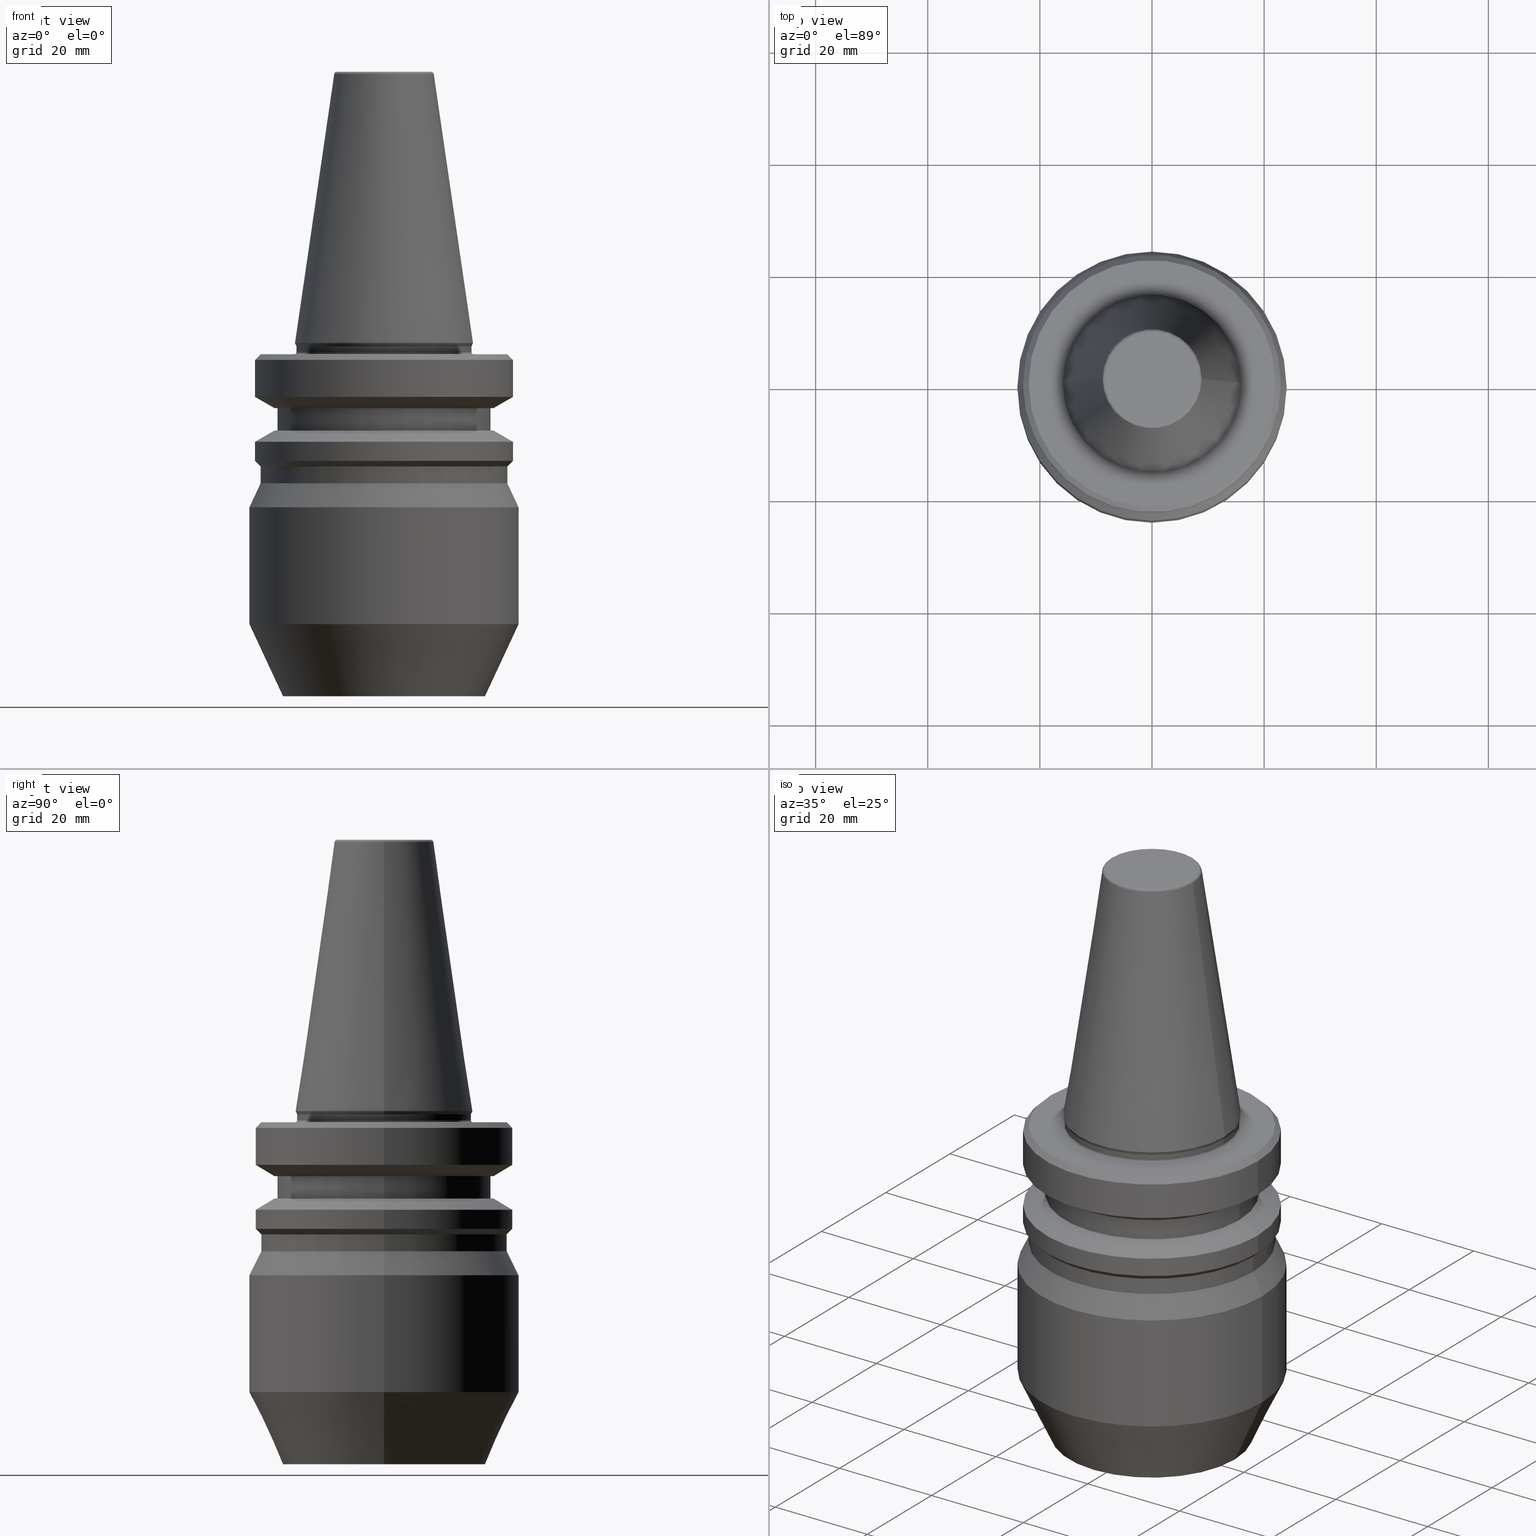
[diagram: canonical four-view strip — front | top / right | iso, engineering-drawing reading convention]
A machine part, canonical four-view strip (front | top / right | iso — engineering-drawing reading convention). The complete STEP part file that produces these views, byte-faithful:
ISO-10303-21;
HEADER;
FILE_DESCRIPTION (( 'STEP AP203' ),
    '1' );
FILE_NAME ('BT30 WE16 063 AD-6.3G15000 SL.STEP',
    '2019-05-22T05:00:20',
    ( '' ),
    ( '' ),
    'SwSTEP 2.0',
    'SolidWorks 2014',
    '' );
FILE_SCHEMA (( 'CONFIG_CONTROL_DESIGN' ));
ENDSEC;

DATA;
#1 = DIRECTION ( 'NONE',  ( 1.000000000000000000, 0.0000000000000000000, 0.0000000000000000000 ) ) ;
#2 = DIRECTION ( 'NONE',  ( 1.000000000000000000, 0.0000000000000000000, 0.0000000000000000000 ) ) ;
#3 = CONICAL_SURFACE ( 'NONE', #935, 23.99999999999813500, 0.4363323129985290900 ) ;
#4 = DIRECTION ( 'NONE',  ( 1.000000000000000000, 0.0000000000000000000, 0.0000000000000000000 ) ) ;
#5 = ADVANCED_FACE ( 'NONE', ( #644 ), #419, .T. ) ;
#6 = CIRCLE ( 'NONE', #303, 22.00000000000013100 ) ;
#7 = AXIS2_PLACEMENT_3D ( 'NONE', #757, #296, #773 ) ;
#8 = DIRECTION ( 'NONE',  ( 1.000000000000000000, 0.0000000000000000000, 0.0000000000000000000 ) ) ;
#9 = CIRCLE ( 'NONE', #916, 17.99999999999846200 ) ;
#10 = EDGE_CURVE ( 'NONE', #975, #853, #617, .T. ) ;
#11 = LINE ( 'NONE', #129, #441 ) ;
#12 = DIRECTION ( 'NONE',  ( -0.0000000000000000000, -0.0000000000000000000, 1.000000000000000000 ) ) ;
#13 = ORIENTED_EDGE ( 'NONE', *, *, #766, .T. ) ;
#14 = EDGE_CURVE ( 'NONE', #721, #677, #11, .T. ) ;
#15 = ORIENTED_EDGE ( 'NONE', *, *, #306, .T. ) ;
#16 = ORIENTED_EDGE ( 'NONE', *, *, #295, .T. ) ;
#17 = CARTESIAN_POINT ( 'NONE',  ( -8.384228427309349000, 1.026771850682464100E-015, 47.89999999999960800 ) ) ;
#18 = DIRECTION ( 'NONE',  ( 1.000000000000000000, 0.0000000000000000000, 0.0000000000000000000 ) ) ;
#19 = DIRECTION ( 'NONE',  ( 1.000000000000000000, 0.0000000000000000000, 0.0000000000000000000 ) ) ;
#20 = AXIS2_PLACEMENT_3D ( 'NONE', #367, #120, #233 ) ;
#21 = EDGE_CURVE ( 'NONE', #464, #800, #816, .T. ) ;
#22 = CARTESIAN_POINT ( 'NONE',  ( 0.0000000000000000000, 0.0000000000000000000, -15.59999999999983600 ) ) ;
#23 = VERTEX_POINT ( 'NONE', #544 ) ;
#24 = VECTOR ( 'NONE', #649, 1000.000000000000000 ) ;
#25 = CALENDAR_DATE ( 2019, 22, 5 ) ;
#26 = DIRECTION ( 'NONE',  ( 1.000000000000000000, 0.0000000000000000000, 0.0000000000000000000 ) ) ;
#27 = DIRECTION ( 'NONE',  ( -0.0000000000000000000, -0.0000000000000000000, 1.000000000000000000 ) ) ;
#28 = AXIS2_PLACEMENT_3D ( 'NONE', #22, #815, #936 ) ;
#29 = CIRCLE ( 'NONE', #252, 23.99999999999813500 ) ;
#30 = CIRCLE ( 'NONE', #28, 19.00000000000023800 ) ;
#31 = VECTOR ( 'NONE', #567, 1000.000000000000000 ) ;
#32 = CARTESIAN_POINT ( 'NONE',  ( 0.0000000000000000000, 19.53610161513941200, -11.59999999999938900 ) ) ;
#33 = SECURITY_CLASSIFICATION ( '', '', #424 ) ;
#34 = EDGE_LOOP ( 'NONE', ( #269, #571, #444, #601 ) ) ;
#35 = DATE_TIME_ROLE ( 'classification_date' ) ;
#36 = DIRECTION ( 'NONE',  ( -0.0000000000000000000, -0.0000000000000000000, 1.000000000000000000 ) ) ;
#37 = ORIENTED_EDGE ( 'NONE', *, *, #770, .F. ) ;
#38 = ORIENTED_EDGE ( 'NONE', *, *, #21, .F. ) ;
#39 = AXIS2_PLACEMENT_3D ( 'NONE', #656, #502, #452 ) ;
#40 = DIRECTION ( 'NONE',  ( -0.0000000000000000000, -0.0000000000000000000, 1.000000000000000000 ) ) ;
#41 = CC_DESIGN_PERSON_AND_ORGANIZATION_ASSIGNMENT ( #48, #695, ( #609 ) ) ;
#42 = ORIENTED_EDGE ( 'NONE', *, *, #946, .F. ) ;
#43 = CARTESIAN_POINT ( 'NONE',  ( 23.00000000000002100, 2.816687638038915100E-015, -2.999999999999891600 ) ) ;
#44 = CARTESIAN_POINT ( 'NONE',  ( 22.00000000000013100, 0.0000000000000000000, -21.99999999999979700 ) ) ;
#45 = ORIENTED_EDGE ( 'NONE', *, *, #942, .F. ) ;
#46 = FACE_OUTER_BOUND ( 'NONE', #889, .T. ) ;
#47 = AXIS2_PLACEMENT_3D ( 'NONE', #687, #613, #497 ) ;
#48 = PERSON_AND_ORGANIZATION ( #655, #369 ) ;
#49 = EDGE_LOOP ( 'NONE', ( #1017, #13, #953, #755 ) ) ;
#50 = CARTESIAN_POINT ( 'NONE',  ( 19.00000000000023800, 0.0000000000000000000, 80.11315735852554100 ) ) ;
#51 = CARTESIAN_POINT ( 'NONE',  ( 0.0000000000000000000, 0.0000000000000000000, -0.5897394031393332600 ) ) ;
#52 = DIRECTION ( 'NONE',  ( 1.000000000000000000, 0.0000000000000000000, 0.0000000000000000000 ) ) ;
#53 = TOROIDAL_SURFACE ( 'NONE', #207, 8.384228427309349000, 0.4999999999999026300 ) ;
#54 = DIRECTION ( 'NONE',  ( 0.0000000000000000000, 0.0000000000000000000, -1.000000000000000000 ) ) ;
#55 = VECTOR ( 'NONE', #436, 1000.000000000000000 ) ;
#56 = LINE ( 'NONE', #133, #866 ) ;
#57 =( LENGTH_UNIT ( ) NAMED_UNIT ( * ) SI_UNIT ( .MILLI., .METRE. ) );
#58 = EDGE_CURVE ( 'NONE', #197, #870, #228, .T. ) ;
#59 = CARTESIAN_POINT ( 'NONE',  ( 0.0000000000000000000, 0.0000000000000000000, -62.99999999999948800 ) ) ;
#60 = EDGE_LOOP ( 'NONE', ( #209, #515, #471, #253 ) ) ;
#61 = AXIS2_PLACEMENT_3D ( 'NONE', #943, #572, #746 ) ;
#62 = ORIENTED_EDGE ( 'NONE', *, *, #245, .T. ) ;
#63 = CARTESIAN_POINT ( 'NONE',  ( -23.00000000000002100, 2.816687638038914700E-015, -9.600117335054614300 ) ) ;
#64 = DIRECTION ( 'NONE',  ( -0.0000000000000000000, -0.0000000000000000000, 1.000000000000000000 ) ) ;
#65 = AXIS2_PLACEMENT_3D ( 'NONE', #599, #799, #285 ) ;
#66 = EDGE_LOOP ( 'NONE', ( #361, #283, #42, #603 ) ) ;
#67 = CIRCLE ( 'NONE', #96, 22.00000000000013100 ) ;
#68 = COORDINATED_UNIVERSAL_TIME_OFFSET ( 5, 30, .AHEAD. ) ;
#69 = AXIS2_PLACEMENT_3D ( 'NONE', #379, #562, #999 ) ;
#70 = DIRECTION ( 'NONE',  ( -0.0000000000000000000, -0.0000000000000000000, 1.000000000000000000 ) ) ;
#71 = ORIENTED_EDGE ( 'NONE', *, *, #487, .T. ) ;
#72 = CARTESIAN_POINT ( 'NONE',  ( 0.0000000000000000000, 0.0000000000000000000, -0.5897394031393332600 ) ) ;
#73 = AXIS2_PLACEMENT_3D ( 'NONE', #952, #877, #871 ) ;
#74 = EDGE_LOOP ( 'NONE', ( #477, #301 ) ) ;
#75 = DIRECTION ( 'NONE',  ( 1.000000000000000000, 0.0000000000000000000, 0.0000000000000000000 ) ) ;
#76 = FACE_OUTER_BOUND ( 'NONE', #904, .T. ) ;
#77 = ADVANCED_FACE ( 'NONE', ( #597 ), #986, .T. ) ;
#78 = DIRECTION ( 'NONE',  ( 0.7071067811865474600, 8.659560562354931600E-017, -0.7071067811865475700 ) ) ;
#79 = AXIS2_PLACEMENT_3D ( 'NONE', #643, #169, #19 ) ;
#80 = CIRCLE ( 'NONE', #290, 0.4999999999999033000 ) ;
#81 = CARTESIAN_POINT ( 'NONE',  ( 23.00000000000002100, 0.0000000000000000000, 80.11315735852554100 ) ) ;
#82 = ORIENTED_EDGE ( 'NONE', *, *, #576, .F. ) ;
#83 = CARTESIAN_POINT ( 'NONE',  ( -23.00000000000002100, 2.816687638038915100E-015, -2.999999999999891600 ) ) ;
#84 = VERTEX_POINT ( 'NONE', #1016 ) ;
#85 = CARTESIAN_POINT ( 'NONE',  ( 0.0000000000000000000, 0.0000000000000000000, 0.0000000000000000000 ) ) ;
#86 = DIRECTION ( 'NONE',  ( 1.000000000000000000, 0.0000000000000000000, 0.0000000000000000000 ) ) ;
#87 = CARTESIAN_POINT ( 'NONE',  ( 0.0000000000000000000, 0.0000000000000000000, -2.999999999999891600 ) ) ;
#88 = AXIS2_PLACEMENT_3D ( 'NONE', #51, #64, #716 ) ;
#89 = ORIENTED_EDGE ( 'NONE', *, *, #145, .F. ) ;
#90 = CARTESIAN_POINT ( 'NONE',  ( -17.99999999999846200, 2.571758278209233400E-015, -62.99999999999948800 ) ) ;
#91 = EDGE_CURVE ( 'NONE', #822, #213, #177, .T. ) ;
#92 = PLANE ( 'NONE',  #481 ) ;
#93 = ORIENTED_EDGE ( 'NONE', *, *, #495, .T. ) ;
#94 = AXIS2_PLACEMENT_3D ( 'NONE', #138, #861, #352 ) ;
#95 = DIRECTION ( 'NONE',  ( 0.0000000000000000000, 0.0000000000000000000, -1.000000000000000000 ) ) ;
#96 = AXIS2_PLACEMENT_3D ( 'NONE', #908, #387, #886 ) ;
#97 = DIRECTION ( 'NONE',  ( 1.000000000000000000, 0.0000000000000000000, 0.0000000000000000000 ) ) ;
#98 = VECTOR ( 'NONE', #434, 1000.000000000000000 ) ;
#99 = FACE_OUTER_BOUND ( 'NONE', #103, .T. ) ;
#100 = PLANE ( 'NONE',  #586 ) ;
#101 = LOCAL_TIME ( 10, 30, 20.00000000000000000, #321 ) ;
#102 = VERTEX_POINT ( 'NONE', #570 ) ;
#103 = EDGE_LOOP ( 'NONE', ( #680, #920, #170, #945 ) ) ;
#104 = CARTESIAN_POINT ( 'NONE',  ( 0.0000000000000000000, 0.0000000000000000000, -2.999999999999891600 ) ) ;
#105 = EDGE_LOOP ( 'NONE', ( #828, #758, #180, #924 ) ) ;
#106 = LINE ( 'NONE', #939, #511 ) ;
#107 = FACE_OUTER_BOUND ( 'NONE', #545, .T. ) ;
#108 = ORIENTED_EDGE ( 'NONE', *, *, #942, .T. ) ;
#109 = AXIS2_PLACEMENT_3D ( 'NONE', #869, #122, #284 ) ;
#110 = ORIENTED_EDGE ( 'NONE', *, *, #306, .F. ) ;
#111 = CARTESIAN_POINT ( 'NONE',  ( -23.00000000000002100, 0.0000000000000000000, -17.59988266494572100 ) ) ;
#112 = ORIENTED_EDGE ( 'NONE', *, *, #262, .T. ) ;
#113 = AXIS2_PLACEMENT_3D ( 'NONE', #32, #400, #850 ) ;
#114 = ORIENTED_EDGE ( 'NONE', *, *, #666, .F. ) ;
#115 = AXIS2_PLACEMENT_3D ( 'NONE', #457, #998, #540 ) ;
#116 = ORIENTED_EDGE ( 'NONE', *, *, #277, .F. ) ;
#117 = LINE ( 'NONE', #977, #727 ) ;
#118 = EDGE_CURVE ( 'NONE', #323, #994, #796, .T. ) ;
#119 = CIRCLE ( 'NONE', #355, 15.60000000000039200 ) ;
#120 = DIRECTION ( 'NONE',  ( -0.0000000000000000000, -0.0000000000000000000, 1.000000000000000000 ) ) ;
#121 = CALENDAR_DATE ( 2019, 22, 5 ) ;
#122 = DIRECTION ( 'NONE',  ( -0.0000000000000000000, -0.0000000000000000000, 1.000000000000000000 ) ) ;
#123 = DIRECTION ( 'NONE',  ( -0.0000000000000000000, -0.0000000000000000000, 1.000000000000000000 ) ) ;
#124 = VERTEX_POINT ( 'NONE', #817 ) ;
#125 = CC_DESIGN_PERSON_AND_ORGANIZATION_ASSIGNMENT ( #528, #526, ( #456 ) ) ;
#126 = DIRECTION ( 'NONE',  ( 1.000000000000000000, 0.0000000000000000000, 0.0000000000000000000 ) ) ;
#127 =( GEOMETRIC_REPRESENTATION_CONTEXT ( 3 ) GLOBAL_UNCERTAINTY_ASSIGNED_CONTEXT ( ( #420 ) ) GLOBAL_UNIT_ASSIGNED_CONTEXT ( ( #57, #395, #496 ) ) REPRESENTATION_CONTEXT ( 'NONE', 'WORKASPACE' ) );
#128 = CIRCLE ( 'NONE', #79, 23.00000000000002100 ) ;
#129 = CARTESIAN_POINT ( 'NONE',  ( -19.00000000000023800, 2.326828918380000200E-015, 80.11315735852554100 ) ) ;
#130 = FACE_OUTER_BOUND ( 'NONE', #184, .T. ) ;
#131 = VERTEX_POINT ( 'NONE', #163 ) ;
#132 = AXIS2_PLACEMENT_3D ( 'NONE', #136, #1006, #52 ) ;
#133 = CARTESIAN_POINT ( 'NONE',  ( -15.60000000000028000, 1.910449006669905600E-015, 80.11315735852554100 ) ) ;
#134 = EDGE_LOOP ( 'NONE', ( #463, #159, #255, #802 ) ) ;
#135 = AXIS2_PLACEMENT_3D ( 'NONE', #1010, #852, #846 ) ;
#136 = CARTESIAN_POINT ( 'NONE',  ( 0.0000000000000000000, 0.0000000000000000000, 80.11315735852554100 ) ) ;
#137 = CARTESIAN_POINT ( 'NONE',  ( 19.00000000000023800, 0.0000000000000000000, -15.59999999999983600 ) ) ;
#138 = CARTESIAN_POINT ( 'NONE',  ( 0.0000000000000000000, 0.0000000000000000000, -17.59988266494572100 ) ) ;
#139 = VERTEX_POINT ( 'NONE', #856 ) ;
#140 = ORIENTED_EDGE ( 'NONE', *, *, #442, .F. ) ;
#141 = FACE_OUTER_BOUND ( 'NONE', #554, .T. ) ;
#142 = AXIS2_PLACEMENT_3D ( 'NONE', #322, #393, #8 ) ;
#143 = VECTOR ( 'NONE', #581, 1000.000000000000000 ) ;
#144 = PERSON_AND_ORGANIZATION ( #655, #369 ) ;
#145 = EDGE_CURVE ( 'NONE', #575, #464, #368, .T. ) ;
#146 = DIRECTION ( 'NONE',  ( -0.0000000000000000000, -0.0000000000000000000, 1.000000000000000000 ) ) ;
#147 = DIRECTION ( 'NONE',  ( -0.0000000000000000000, -0.0000000000000000000, 1.000000000000000000 ) ) ;
#148 = VERTEX_POINT ( 'NONE', #728 ) ;
#149 = CARTESIAN_POINT ( 'NONE',  ( 15.87499999999930700, 1.944126793646338400E-015, 0.0000000000000000000 ) ) ;
#150 = AXIS2_PLACEMENT_3D ( 'NONE', #85, #460, #1 ) ;
#151 = CIRCLE ( 'NONE', #88, 15.60000000000016800 ) ;
#152 = DIRECTION ( 'NONE',  ( 1.000000000000000000, 0.0000000000000000000, 0.0000000000000000000 ) ) ;
#153 = AXIS2_PLACEMENT_3D ( 'NONE', #276, #494, #726 ) ;
#154 = VERTEX_POINT ( 'NONE', #536 ) ;
#155 = DIRECTION ( 'NONE',  ( -0.0000000000000000000, -0.0000000000000000000, 1.000000000000000000 ) ) ;
#156 = ORIENTED_EDGE ( 'NONE', *, *, #759, .F. ) ;
#157 = CARTESIAN_POINT ( 'NONE',  ( 22.00000000000013100, 0.0000000000000000000, 80.11315735852554100 ) ) ;
#158 = ORIENTED_EDGE ( 'NONE', *, *, #596, .T. ) ;
#159 = ORIENTED_EDGE ( 'NONE', *, *, #392, .T. ) ;
#160 = FACE_OUTER_BOUND ( 'NONE', #498, .T. ) ;
#161 = CC_DESIGN_DATE_AND_TIME_ASSIGNMENT ( #830, #35, ( #33 ) ) ;
#162 = CARTESIAN_POINT ( 'NONE',  ( 0.0000000000000000000, 0.0000000000000000000, -2.000000000000001800 ) ) ;
#163 = CARTESIAN_POINT ( 'NONE',  ( 22.00000000000013100, 2.755455298081553800E-015, -2.000000000000001800 ) ) ;
#164 = DIRECTION ( 'NONE',  ( -0.0000000000000000000, -0.0000000000000000000, 1.000000000000000000 ) ) ;
#165 = DIRECTION ( 'NONE',  ( -0.4226182617406511500, 0.0000000000000000000, -0.9063077870366724700 ) ) ;
#166 = DIRECTION ( 'NONE',  ( 1.000000000000000000, 0.0000000000000000000, 0.0000000000000000000 ) ) ;
#167 = DIRECTION ( 'NONE',  ( -0.0000000000000000000, -0.0000000000000000000, 1.000000000000000000 ) ) ;
#168 = AXIS2_PLACEMENT_3D ( 'NONE', #788, #905, #838 ) ;
#169 = DIRECTION ( 'NONE',  ( -0.0000000000000000000, -0.0000000000000000000, 1.000000000000000000 ) ) ;
#170 = ORIENTED_EDGE ( 'NONE', *, *, #616, .T. ) ;
#171 = AXIS2_PLACEMENT_3D ( 'NONE', #356, #859, #230 ) ;
#172 = ADVANCED_FACE ( 'NONE', ( #578, #394 ), #92, .F. ) ;
#173 = LINE ( 'NONE', #203, #981 ) ;
#174 = CONICAL_SURFACE ( 'NONE', #362, 23.00000000000002100, 0.7853981633974482800 ) ;
#175 = CARTESIAN_POINT ( 'NONE',  ( 0.0000000000000000000, 0.0000000000000000000, 48.39999999999951500 ) ) ;
#176 = CARTESIAN_POINT ( 'NONE',  ( -23.00000000000002100, 2.816687638038915100E-015, 80.11315735852554100 ) ) ;
#177 = CIRCLE ( 'NONE', #227, 19.53610161513941200 ) ;
#178 = CARTESIAN_POINT ( 'NONE',  ( -22.00000000000013100, 2.694222958124193000E-015, -21.99999999999979700 ) ) ;
#179 = ADVANCED_FACE ( 'NONE', ( #961 ), #202, .F. ) ;
#180 = ORIENTED_EDGE ( 'NONE', *, *, #279, .F. ) ;
#181 = ORIENTED_EDGE ( 'NONE', *, *, #288, .F. ) ;
#182 = DIRECTION ( 'NONE',  ( 0.0000000000000000000, 0.0000000000000000000, -1.000000000000000000 ) ) ;
#183 = FACE_OUTER_BOUND ( 'NONE', #134, .T. ) ;
#184 = EDGE_LOOP ( 'NONE', ( #71, #326 ) ) ;
#185 = DIRECTION ( 'NONE',  ( -0.0000000000000000000, -0.0000000000000000000, 1.000000000000000000 ) ) ;
#186 = AXIS2_PLACEMENT_3D ( 'NONE', #709, #787, #973 ) ;
#187 = AXIS2_PLACEMENT_3D ( 'NONE', #1004, #201, #484 ) ;
#188 = CARTESIAN_POINT ( 'NONE',  ( 0.0000000000000000000, 0.0000000000000000000, 0.0000000000000000000 ) ) ;
#189 = EDGE_LOOP ( 'NONE', ( #62, #422, #798, #706 ) ) ;
#190 = FACE_OUTER_BOUND ( 'NONE', #933, .T. ) ;
#191 = CARTESIAN_POINT ( 'NONE',  ( 0.0000000000000000000, 0.0000000000000000000, -29.28901384101512000 ) ) ;
#192 = DIRECTION ( 'NONE',  ( 1.000000000000000000, 0.0000000000000000000, 0.0000000000000000000 ) ) ;
#193 = AXIS2_PLACEMENT_3D ( 'NONE', #220, #363, #898 ) ;
#194 = CARTESIAN_POINT ( 'NONE',  ( -23.00000000000002100, 0.0000000000000000000, -2.999999999999891600 ) ) ;
#195 = AXIS2_PLACEMENT_3D ( 'NONE', #955, #824, #618 ) ;
#196 = CARTESIAN_POINT ( 'NONE',  ( 0.0000000000000000000, 0.0000000000000000000, -1.600000000000045800 ) ) ;
#197 = VERTEX_POINT ( 'NONE', #557 ) ;
#198 = VECTOR ( 'NONE', #941, 1000.000000000000000 ) ;
#199 = APPROVAL ( #278, 'UNSPECIFIED' ) ;
#200 = FACE_OUTER_BOUND ( 'NONE', #189, .T. ) ;
#201 = DIRECTION ( 'NONE',  ( 1.224646799147353200E-016, 1.000000000000000000, 0.0000000000000000000 ) ) ;
#202 = TOROIDAL_SURFACE ( 'NONE', #432, 16.00000000000056800, 0.4000000000001779900 ) ;
#203 = CARTESIAN_POINT ( 'NONE',  ( 15.60000000000016800, 0.0000000000000000000, -0.5897394031393332600 ) ) ;
#204 = EDGE_CURVE ( 'NONE', #538, #323, #552, .T. ) ;
#205 = ORIENTED_EDGE ( 'NONE', *, *, #745, .F. ) ;
#206 = EDGE_LOOP ( 'NONE', ( #205, #992, #16, #232 ) ) ;
#207 = AXIS2_PLACEMENT_3D ( 'NONE', #958, #208, #635 ) ;
#208 = DIRECTION ( 'NONE',  ( -0.0000000000000000000, -0.0000000000000000000, 1.000000000000000000 ) ) ;
#209 = ORIENTED_EDGE ( 'NONE', *, *, #759, .T. ) ;
#210 = EDGE_CURVE ( 'NONE', #124, #449, #348, .T. ) ;
#211 = DIRECTION ( 'NONE',  ( 1.000000000000000000, 0.0000000000000000000, 0.0000000000000000000 ) ) ;
#212 = EDGE_CURVE ( 'NONE', #449, #124, #119, .T. ) ;
#213 = VERTEX_POINT ( 'NONE', #259 ) ;
#214 = CYLINDRICAL_SURFACE ( 'NONE', #646, 23.00000000000002100 ) ;
#215 = COORDINATED_UNIVERSAL_TIME_OFFSET ( 5, 30, .AHEAD. ) ;
#216 = DIRECTION ( 'NONE',  ( -1.000000000000000000, 0.0000000000000000000, 0.0000000000000000000 ) ) ;
#217 = CARTESIAN_POINT ( 'NONE',  ( 0.0000000000000000000, 0.0000000000000000000, -62.99999999999948800 ) ) ;
#218 = AXIS2_PLACEMENT_3D ( 'NONE', #196, #810, #86 ) ;
#219 = LINE ( 'NONE', #551, #527 ) ;
#220 = CARTESIAN_POINT ( 'NONE',  ( 0.0000000000000000000, 0.0000000000000000000, -24.99999999999968700 ) ) ;
#221 = CONICAL_SURFACE ( 'NONE', #266, 15.87499999999930700, 0.1448138461595538900 ) ;
#222 = PLANE ( 'NONE',  #69 ) ;
#223 = CYLINDRICAL_SURFACE ( 'NONE', #236, 19.00000000000023800 ) ;
#224 = AXIS2_PLACEMENT_3D ( 'NONE', #900, #164, #485 ) ;
#225 = DIRECTION ( 'NONE',  ( 1.000000000000000000, 0.0000000000000000000, 0.0000000000000000000 ) ) ;
#226 = ADVANCED_FACE ( 'NONE', ( #931 ), #700, .T. ) ;
#227 = AXIS2_PLACEMENT_3D ( 'NONE', #475, #951, #883 ) ;
#228 = CIRCLE ( 'NONE', #168, 8.384228427309125200 ) ;
#229 = EDGE_LOOP ( 'NONE', ( #89, #1001, #841, #116 ) ) ;
#230 = DIRECTION ( 'NONE',  ( 1.000000000000000000, 0.0000000000000000000, 0.0000000000000000000 ) ) ;
#231 = CC_DESIGN_PERSON_AND_ORGANIZATION_ASSIGNMENT ( #855, #725, ( #609 ) ) ;
#232 = ORIENTED_EDGE ( 'NONE', *, *, #971, .T. ) ;
#233 = DIRECTION ( 'NONE',  ( 1.000000000000000000, 0.0000000000000000000, 0.0000000000000000000 ) ) ;
#234 = EDGE_LOOP ( 'NONE', ( #399, #1012 ) ) ;
#235 = CARTESIAN_POINT ( 'NONE',  ( 15.87499999999930700, 0.0000000000000000000, 0.0000000000000000000 ) ) ;
#236 = AXIS2_PLACEMENT_3D ( 'NONE', #357, #155, #765 ) ;
#237 = CARTESIAN_POINT ( 'NONE',  ( 19.53610161513941200, 0.0000000000000000000, -11.59999999999938900 ) ) ;
#238 = ORIENTED_EDGE ( 'NONE', *, *, #416, .F. ) ;
#239 = CYLINDRICAL_SURFACE ( 'NONE', #465, 23.99999999999813500 ) ;
#240 = LOCAL_TIME ( 10, 30, 20.00000000000000000, #451 ) ;
#241 = CARTESIAN_POINT ( 'NONE',  ( 8.384228427309349000, 0.0000000000000000000, 47.89999999999960800 ) ) ;
#242 = ADVANCED_FACE ( 'NONE', ( #99 ), #587, .T. ) ;
#243 = DIRECTION ( 'NONE',  ( 1.000000000000000000, 0.0000000000000000000, 0.0000000000000000000 ) ) ;
#244 = CYLINDRICAL_SURFACE ( 'NONE', #132, 22.00000000000013100 ) ;
#245 = EDGE_CURVE ( 'NONE', #853, #975, #504, .T. ) ;
#246 = ADVANCED_FACE ( 'NONE', ( #320 ), #778, .T. ) ;
#247 = DIRECTION ( 'NONE',  ( -0.0000000000000000000, -0.0000000000000000000, 1.000000000000000000 ) ) ;
#248 = FACE_BOUND ( 'NONE', #807, .T. ) ;
#249 = CARTESIAN_POINT ( 'NONE',  ( 19.53610161513941200, 0.0000000000000000000, -11.59999999999938900 ) ) ;
#250 = VECTOR ( 'NONE', #849, 1000.000000000000000 ) ;
#251 = DIRECTION ( 'NONE',  ( 1.000000000000000000, 0.0000000000000000000, 0.0000000000000000000 ) ) ;
#252 = AXIS2_PLACEMENT_3D ( 'NONE', #413, #289, #75 ) ;
#253 = ORIENTED_EDGE ( 'NONE', *, *, #675, .F. ) ;
#254 = DIRECTION ( 'NONE',  ( -0.8660254037844372600, 0.0000000000000000000, -0.5000000000000024400 ) ) ;
#255 = ORIENTED_EDGE ( 'NONE', *, *, #509, .T. ) ;
#256 = ADVANCED_FACE ( 'NONE', ( #183 ), #990, .T. ) ;
#257 = AXIS2_PLACEMENT_3D ( 'NONE', #351, #147, #704 ) ;
#258 = ORIENTED_EDGE ( 'NONE', *, *, #785, .T. ) ;
#259 = CARTESIAN_POINT ( 'NONE',  ( -19.53610161513941200, 2.604585034559353400E-015, -11.59999999999938900 ) ) ;
#260 = ADVANCED_FACE ( 'NONE', ( #902 ), #968, .T. ) ;
#261 = DIRECTION ( 'NONE',  ( -1.000000000000000000, 0.0000000000000000000, 0.0000000000000000000 ) ) ;
#262 = EDGE_CURVE ( 'NONE', #213, #822, #731, .T. ) ;
#263 = DIRECTION ( 'NONE',  ( 1.000000000000000000, 0.0000000000000000000, 0.0000000000000000000 ) ) ;
#264 = EDGE_LOOP ( 'NONE', ( #93, #956, #947, #768 ) ) ;
#265 = VECTOR ( 'NONE', #512, 1000.000000000000000 ) ;
#266 = AXIS2_PLACEMENT_3D ( 'NONE', #598, #875, #261 ) ;
#267 = APPROVAL_DATE_TIME ( #479, #734 ) ;
#268 = AXIS2_PLACEMENT_3D ( 'NONE', #304, #448, #997 ) ;
#269 = ORIENTED_EDGE ( 'NONE', *, *, #946, .T. ) ;
#270 = CARTESIAN_POINT ( 'NONE',  ( 15.60000000000028000, 0.0000000000000000000, 80.11315735852554100 ) ) ;
#271 = VECTOR ( 'NONE', #622, 999.9999999999998900 ) ;
#272 = CARTESIAN_POINT ( 'NONE',  ( 0.0000000000000000000, 0.0000000000000000000, -17.59988266494572100 ) ) ;
#273 = AXIS2_PLACEMENT_3D ( 'NONE', #188, #893, #978 ) ;
#274 = VECTOR ( 'NONE', #640, 1000.000000000000000 ) ;
#275 = CYLINDRICAL_SURFACE ( 'NONE', #556, 22.00000000000013100 ) ;
#276 = CARTESIAN_POINT ( 'NONE',  ( 0.0000000000000000000, 0.0000000000000000000, 80.11315735852554100 ) ) ;
#277 = EDGE_CURVE ( 'NONE', #464, #868, #584, .T. ) ;
#278 = APPROVAL_STATUS ( 'not_yet_approved' ) ;
#279 = EDGE_CURVE ( 'NONE', #23, #84, #151, .T. ) ;
#280 = EDGE_CURVE ( 'NONE', #677, #154, #374, .T. ) ;
#281 = DIRECTION ( 'NONE',  ( -0.0000000000000000000, -0.0000000000000000000, 1.000000000000000000 ) ) ;
#282 = AXIS2_PLACEMENT_3D ( 'NONE', #917, #167, #97 ) ;
#283 = ORIENTED_EDGE ( 'NONE', *, *, #812, .T. ) ;
#284 = DIRECTION ( 'NONE',  ( 1.000000000000000000, 0.0000000000000000000, 0.0000000000000000000 ) ) ;
#285 = DIRECTION ( 'NONE',  ( 1.000000000000000000, 0.0000000000000000000, 0.0000000000000000000 ) ) ;
#286 = EDGE_CURVE ( 'NONE', #800, #884, #756, .T. ) ;
#287 = ORIENTED_EDGE ( 'NONE', *, *, #210, .T. ) ;
#288 = EDGE_CURVE ( 'NONE', #820, #582, #353, .T. ) ;
#289 = DIRECTION ( 'NONE',  ( -0.0000000000000000000, -0.0000000000000000000, 1.000000000000000000 ) ) ;
#290 = AXIS2_PLACEMENT_3D ( 'NONE', #17, #681, #1008 ) ;
#291 = DIRECTION ( 'NONE',  ( -0.0000000000000000000, -0.0000000000000000000, 1.000000000000000000 ) ) ;
#292 = CONICAL_SURFACE ( 'NONE', #521, 23.00000000000002100, 0.7853981633974482800 ) ;
#293 = APPROVAL_PERSON_ORGANIZATION ( #505, #734, #811 ) ;
#294 = EDGE_CURVE ( 'NONE', #341, #600, #128, .T. ) ;
#295 = EDGE_CURVE ( 'NONE', #102, #600, #561, .T. ) ;
#296 = DIRECTION ( 'NONE',  ( -0.0000000000000000000, -0.0000000000000000000, 1.000000000000000000 ) ) ;
#297 = ORIENTED_EDGE ( 'NONE', *, *, #10, .T. ) ;
#298 = FACE_OUTER_BOUND ( 'NONE', #34, .T. ) ;
#299 = VECTOR ( 'NONE', #513, 1000.000000000000100 ) ;
#300 = EDGE_CURVE ( 'NONE', #868, #464, #938, .T. ) ;
#301 = ORIENTED_EDGE ( 'NONE', *, *, #392, .F. ) ;
#302 = CARTESIAN_POINT ( 'NONE',  ( 0.0000000000000000000, 0.0000000000000000000, 47.89999999999960800 ) ) ;
#303 = AXIS2_PLACEMENT_3D ( 'NONE', #624, #669, #329 ) ;
#304 = CARTESIAN_POINT ( 'NONE',  ( 0.0000000000000000000, 0.0000000000000000000, -2.000000000000001800 ) ) ;
#305 = CARTESIAN_POINT ( 'NONE',  ( 0.0000000000000000000, 0.0000000000000000000, -20.99999999999990800 ) ) ;
#306 = EDGE_CURVE ( 'NONE', #582, #820, #328, .T. ) ;
#307 = ADVANCED_FACE ( 'NONE', ( #739 ), #887, .T. ) ;
#308 = ORIENTED_EDGE ( 'NONE', *, *, #279, .T. ) ;
#309 = DIRECTION ( 'NONE',  ( -0.7071067811865474600, 0.0000000000000000000, -0.7071067811865475700 ) ) ;
#310 = CC_DESIGN_PERSON_AND_ORGANIZATION_ASSIGNMENT ( #144, #468, ( #500 ) ) ;
#311 = ORIENTED_EDGE ( 'NONE', *, *, #10, .F. ) ;
#312 = ADVANCED_FACE ( 'NONE', ( #298 ), #910, .T. ) ;
#313 = DIRECTION ( 'NONE',  ( -1.000000000000000000, 0.0000000000000000000, 0.0000000000000000000 ) ) ;
#314 = EDGE_CURVE ( 'NONE', #820, #884, #106, .T. ) ;
#315 = AXIS2_PLACEMENT_3D ( 'NONE', #897, #54, #216 ) ;
#316 = DIRECTION ( 'NONE',  ( -1.000000000000000000, 0.0000000000000000000, 0.0000000000000000000 ) ) ;
#317 = AXIS2_PLACEMENT_3D ( 'NONE', #795, #342, #524 ) ;
#318 = CARTESIAN_POINT ( 'NONE',  ( 23.99999999999813500, 2.939152317953419500E-015, -29.28901384101512000 ) ) ;
#319 = LINE ( 'NONE', #44, #265 ) ;
#320 = FACE_OUTER_BOUND ( 'NONE', #66, .T. ) ;
#321 = COORDINATED_UNIVERSAL_TIME_OFFSET ( 5, 30, .AHEAD. ) ;
#322 = CARTESIAN_POINT ( 'NONE',  ( 0.0000000000000000000, 0.0000000000000000000, -15.59999999999983600 ) ) ;
#323 = VERTEX_POINT ( 'NONE', #508 ) ;
#324 = CARTESIAN_POINT ( 'NONE',  ( 16.00000000000056800, 0.0000000000000000000, -1.600000000000045800 ) ) ;
#325 = CC_DESIGN_APPROVAL ( #199, ( #456 ) ) ;
#326 = ORIENTED_EDGE ( 'NONE', *, *, #58, .T. ) ;
#327 = AXIS2_PLACEMENT_3D ( 'NONE', #518, #384, #984 ) ;
#328 = CIRCLE ( 'NONE', #142, 19.53610161513752500 ) ;
#329 = DIRECTION ( 'NONE',  ( 1.000000000000000000, 0.0000000000000000000, 0.0000000000000000000 ) ) ;
#330 = CONICAL_SURFACE ( 'NONE', #186, 15.87499999999930700, 0.1448138461595538900 ) ;
#331 = EDGE_CURVE ( 'NONE', #975, #447, #483, .T. ) ;
#332 = ORIENTED_EDGE ( 'NONE', *, *, #295, .F. ) ;
#333 = ADVANCED_FACE ( 'NONE', ( #707 ), #53, .T. ) ;
#334 = CARTESIAN_POINT ( 'NONE',  ( 19.53610161513752500, 2.604585034559237900E-015, -15.59999999999983600 ) ) ;
#335 = ORIENTED_EDGE ( 'NONE', *, *, #971, .F. ) ;
#336 = CARTESIAN_POINT ( 'NONE',  ( 0.0000000000000000000, 0.0000000000000000000, -11.59999999999938900 ) ) ;
#337 = ORIENTED_EDGE ( 'NONE', *, *, #402, .F. ) ;
#338 = CARTESIAN_POINT ( 'NONE',  ( 8.878994820583297800, 1.515745026156832100E-015, 47.97215411344124900 ) ) ;
#339 = CARTESIAN_POINT ( 'NONE',  ( 0.0000000000000000000, 19.53610161513752500, -15.59999999999983600 ) ) ;
#340 = AXIS2_PLACEMENT_3D ( 'NONE', #241, #989, #626 ) ;
#341 = VERTEX_POINT ( 'NONE', #662 ) ;
#342 = DIRECTION ( 'NONE',  ( -0.0000000000000000000, -0.0000000000000000000, 1.000000000000000000 ) ) ;
#343 = ADVANCED_FACE ( 'NONE', ( #76 ), #244, .T. ) ;
#344 = PERSON_AND_ORGANIZATION_ROLE ( 'classification_officer' ) ;
#345 = FACE_OUTER_BOUND ( 'NONE', #899, .T. ) ;
#346 = DIRECTION ( 'NONE',  ( -0.0000000000000000000, -0.0000000000000000000, 1.000000000000000000 ) ) ;
#347 = EDGE_CURVE ( 'NONE', #449, #23, #862, .T. ) ;
#348 = CIRCLE ( 'NONE', #218, 15.60000000000039200 ) ;
#349 = LOCAL_TIME ( 10, 30, 20.00000000000000000, #553 ) ;
#350 = ORIENTED_EDGE ( 'NONE', *, *, #914, .F. ) ;
#351 = CARTESIAN_POINT ( 'NONE',  ( 0.0000000000000000000, 0.0000000000000000000, 47.97215411344124900 ) ) ;
#352 = DIRECTION ( 'NONE',  ( 1.000000000000000000, 0.0000000000000000000, 0.0000000000000000000 ) ) ;
#353 = CIRCLE ( 'NONE', #696, 19.53610161513752500 ) ;
#354 = AXIS2_PLACEMENT_3D ( 'NONE', #749, #780, #429 ) ;
#355 = AXIS2_PLACEMENT_3D ( 'NONE', #539, #720, #960 ) ;
#356 = CARTESIAN_POINT ( 'NONE',  ( 0.0000000000000000000, 0.0000000000000000000, -50.13295847694320200 ) ) ;
#357 = CARTESIAN_POINT ( 'NONE',  ( 0.0000000000000000000, 0.0000000000000000000, 80.11315735852554100 ) ) ;
#358 = ORIENTED_EDGE ( 'NONE', *, *, #967, .T. ) ;
#359 = EDGE_CURVE ( 'NONE', #84, #447, #665, .T. ) ;
#360 = ORIENTED_EDGE ( 'NONE', *, *, #919, .T. ) ;
#361 = ORIENTED_EDGE ( 'NONE', *, *, #91, .T. ) ;
#362 = AXIS2_PLACEMENT_3D ( 'NONE', #87, #684, #763 ) ;
#363 = DIRECTION ( 'NONE',  ( -0.0000000000000000000, -0.0000000000000000000, 1.000000000000000000 ) ) ;
#364 = AXIS2_PLACEMENT_3D ( 'NONE', #476, #823, #950 ) ;
#365 = ORIENTED_EDGE ( 'NONE', *, *, #331, .T. ) ;
#366 = CIRCLE ( 'NONE', #282, 22.00000000000013100 ) ;
#367 = CARTESIAN_POINT ( 'NONE',  ( 0.0000000000000000000, 0.0000000000000000000, -11.59999999999938900 ) ) ;
#368 = LINE ( 'NONE', #466, #143 ) ;
#369 = ORGANIZATION ( 'UNSPECIFIED', 'UNSPECIFIED', '' ) ;
#370 = CARTESIAN_POINT ( 'NONE',  ( -15.87499999999930700, 0.0000000000000000000, 0.0000000000000000000 ) ) ;
#371 = EDGE_CURVE ( 'NONE', #994, #139, #29, .T. ) ;
#372 = EDGE_LOOP ( 'NONE', ( #674, #311, #365, #358 ) ) ;
#373 = ORIENTED_EDGE ( 'NONE', *, *, #286, .T. ) ;
#374 = CIRCLE ( 'NONE', #317, 19.00000000000023800 ) ;
#375 = ORIENTED_EDGE ( 'NONE', *, *, #671, .T. ) ;
#376 = DESIGN_CONTEXT ( 'detailed design', #614, 'design' ) ;
#377 = DIRECTION ( 'NONE',  ( 1.000000000000000000, 0.0000000000000000000, 0.0000000000000000000 ) ) ;
#378 = AXIS2_PLACEMENT_3D ( 'NONE', #637, #619, #667 ) ;
#379 = CARTESIAN_POINT ( 'NONE',  ( 0.0000000000000000000, 17.99999999999846200, -62.99999999999972300 ) ) ;
#380 = ORIENTED_EDGE ( 'NONE', *, *, #288, .T. ) ;
#381 = DIRECTION ( 'NONE',  ( 1.000000000000000000, 0.0000000000000000000, 0.0000000000000000000 ) ) ;
#382 = ORIENTED_EDGE ( 'NONE', *, *, #458, .F. ) ;
#383 = SHAPE_DEFINITION_REPRESENTATION ( #789, #660 ) ;
#384 = DIRECTION ( 'NONE',  ( -0.0000000000000000000, -0.0000000000000000000, 1.000000000000000000 ) ) ;
#385 = PRODUCT_RELATED_PRODUCT_CATEGORY ( 'detail', '', ( #500 ) ) ;
#386 = DIRECTION ( 'NONE',  ( 0.0000000000000000000, 0.0000000000000000000, -1.000000000000000000 ) ) ;
#387 = DIRECTION ( 'NONE',  ( -0.0000000000000000000, -0.0000000000000000000, 1.000000000000000000 ) ) ;
#388 = DIRECTION ( 'NONE',  ( 1.000000000000000000, 0.0000000000000000000, 0.0000000000000000000 ) ) ;
#389 = ORIENTED_EDGE ( 'NONE', *, *, #300, .T. ) ;
#390 = FACE_OUTER_BOUND ( 'NONE', #401, .T. ) ;
#391 = CIRCLE ( 'NONE', #187, 0.4000000000001779900 ) ;
#392 = EDGE_CURVE ( 'NONE', #721, #430, #636, .T. ) ;
#393 = DIRECTION ( 'NONE',  ( -0.0000000000000000000, -0.0000000000000000000, 1.000000000000000000 ) ) ;
#394 = FACE_OUTER_BOUND ( 'NONE', #913, .T. ) ;
#395 =( NAMED_UNIT ( * ) PLANE_ANGLE_UNIT ( ) SI_UNIT ( $, .RADIAN. ) );
#396 = ORIENTED_EDGE ( 'NONE', *, *, #426, .T. ) ;
#397 = EDGE_CURVE ( 'NONE', #884, #800, #437, .T. ) ;
#398 = DIRECTION ( 'NONE',  ( 0.0000000000000000000, 0.0000000000000000000, -1.000000000000000000 ) ) ;
#399 = ORIENTED_EDGE ( 'NONE', *, *, #604, .F. ) ;
#400 = DIRECTION ( 'NONE',  ( 0.0000000000000000000, -0.0000000000000000000, 1.000000000000000000 ) ) ;
#401 = EDGE_LOOP ( 'NONE', ( #585, #569, #588, #37 ) ) ;
#402 = EDGE_CURVE ( 'NONE', #717, #139, #219, .T. ) ;
#403 = ADVANCED_FACE ( 'NONE', ( #454 ), #330, .T. ) ;
#404 = CARTESIAN_POINT ( 'NONE',  ( 0.0000000000000000000, 0.0000000000000000000, -1.600000000000045800 ) ) ;
#405 = CARTESIAN_POINT ( 'NONE',  ( -19.53610161513752500, 0.0000000000000000000, -15.59999999999983600 ) ) ;
#406 = ORIENTED_EDGE ( 'NONE', *, *, #280, .T. ) ;
#407 = LINE ( 'NONE', #111, #589 ) ;
#408 = APPROVAL_DATE_TIME ( #608, #517 ) ;
#409 = ADVANCED_FACE ( 'NONE', ( #130 ), #865, .F. ) ;
#410 = EDGE_CURVE ( 'NONE', #853, #870, #741, .T. ) ;
#411 = DIRECTION ( 'NONE',  ( -0.0000000000000000000, -0.0000000000000000000, 1.000000000000000000 ) ) ;
#412 = EDGE_CURVE ( 'NONE', #154, #677, #944, .T. ) ;
#413 = CARTESIAN_POINT ( 'NONE',  ( 0.0000000000000000000, 0.0000000000000000000, -29.28901384101512000 ) ) ;
#414 = CIRCLE ( 'NONE', #826, 15.60000000000016800 ) ;
#415 = FACE_OUTER_BOUND ( 'NONE', #630, .T. ) ;
#416 = EDGE_CURVE ( 'NONE', #651, #600, #534, .T. ) ;
#417 = CARTESIAN_POINT ( 'NONE',  ( -8.878994820583297800, 0.0000000000000000000, 47.97215411344124900 ) ) ;
#418 = DIRECTION ( 'NONE',  ( -1.000000000000000000, 0.0000000000000000000, 0.0000000000000000000 ) ) ;
#419 = CONICAL_SURFACE ( 'NONE', #315, 23.00000000000002100, 1.047197551196595000 ) ;
#420 = UNCERTAINTY_MEASURE_WITH_UNIT (LENGTH_MEASURE( 1.000000000000000100E-005 ), #57, 'distance_accuracy_value', 'NONE');
#421 = DIRECTION ( 'NONE',  ( 1.000000000000000000, 0.0000000000000000000, 0.0000000000000000000 ) ) ;
#422 = ORIENTED_EDGE ( 'NONE', *, *, #442, .T. ) ;
#423 = ORIENTED_EDGE ( 'NONE', *, *, #294, .T. ) ;
#424 = SECURITY_CLASSIFICATION_LEVEL ( 'unclassified' ) ;
#425 = DIRECTION ( 'NONE',  ( -0.0000000000000000000, -0.0000000000000000000, 1.000000000000000000 ) ) ;
#426 = EDGE_CURVE ( 'NONE', #822, #148, #514, .T. ) ;
#427 = ORIENTED_EDGE ( 'NONE', *, *, #860, .T. ) ;
#428 = ADVANCED_FACE ( 'NONE', ( #712 ), #486, .T. ) ;
#429 = DIRECTION ( 'NONE',  ( 1.000000000000000000, 0.0000000000000000000, 0.0000000000000000000 ) ) ;
#430 = VERTEX_POINT ( 'NONE', #137 ) ;
#431 = FACE_OUTER_BOUND ( 'NONE', #60, .T. ) ;
#432 = AXIS2_PLACEMENT_3D ( 'NONE', #404, #12, #192 ) ;
#433 = APPROVAL_PERSON_ORGANIZATION ( #632, #517, #839 ) ;
#434 = DIRECTION ( 'NONE',  ( -0.4226182617407091600, 5.175581015019777100E-017, 0.9063077870366453800 ) ) ;
#435 = EDGE_CURVE ( 'NONE', #323, #575, #685, .T. ) ;
#436 = DIRECTION ( 'NONE',  ( -0.0000000000000000000, -0.0000000000000000000, 1.000000000000000000 ) ) ;
#437 = CIRCLE ( 'NONE', #682, 23.00000000000002100 ) ;
#438 = CIRCLE ( 'NONE', #993, 8.384228427309125200 ) ;
#439 = CARTESIAN_POINT ( 'NONE',  ( 8.384228427309125200, 0.0000000000000000000, 48.39999999999951500 ) ) ;
#440 = FACE_OUTER_BOUND ( 'NONE', #547, .T. ) ;
#441 = VECTOR ( 'NONE', #881, 1000.000000000000000 ) ;
#442 = EDGE_CURVE ( 'NONE', #975, #197, #80, .T. ) ;
#443 = CARTESIAN_POINT ( 'NONE',  ( 23.00000000000002100, 0.0000000000000000000, 80.11315735852554100 ) ) ;
#444 = ORIENTED_EDGE ( 'NONE', *, *, #294, .F. ) ;
#445 = ORIENTED_EDGE ( 'NONE', *, *, #892, .F. ) ;
#446 = CARTESIAN_POINT ( 'NONE',  ( -15.60000000000016800, 1.910449006669891400E-015, -0.5897394031393332600 ) ) ;
#447 = VERTEX_POINT ( 'NONE', #602 ) ;
#448 = DIRECTION ( 'NONE',  ( -0.0000000000000000000, -0.0000000000000000000, 1.000000000000000000 ) ) ;
#449 = VERTEX_POINT ( 'NONE', #767 ) ;
#450 = CIRCLE ( 'NONE', #378, 23.99999999999813500 ) ;
#451 = COORDINATED_UNIVERSAL_TIME_OFFSET ( 5, 30, .AHEAD. ) ;
#452 = DIRECTION ( 'NONE',  ( 1.000000000000000000, 0.0000000000000000000, 0.0000000000000000000 ) ) ;
#453 = VERTEX_POINT ( 'NONE', #555 ) ;
#454 = FACE_OUTER_BOUND ( 'NONE', #372, .T. ) ;
#455 = VERTEX_POINT ( 'NONE', #90 ) ;
#456 = PRODUCT_DEFINITION ( 'UNKNOWN', '', #609, #376 ) ;
#457 = CARTESIAN_POINT ( 'NONE',  ( 0.0000000000000000000, 0.0000000000000000000, -2.000000000000001800 ) ) ;
#458 = EDGE_CURVE ( 'NONE', #453, #717, #864, .T. ) ;
#459 = CIRCLE ( 'NONE', #985, 17.99999999999846200 ) ;
#460 = DIRECTION ( 'NONE',  ( -0.0000000000000000000, -0.0000000000000000000, 1.000000000000000000 ) ) ;
#461 = VECTOR ( 'NONE', #281, 1000.000000000000000 ) ;
#462 = CARTESIAN_POINT ( 'NONE',  ( 0.0000000000000000000, 22.00000000000013100, -2.000000000000001800 ) ) ;
#463 = ORIENTED_EDGE ( 'NONE', *, *, #14, .F. ) ;
#464 = VERTEX_POINT ( 'NONE', #1000 ) ;
#465 = AXIS2_PLACEMENT_3D ( 'NONE', #991, #676, #26 ) ;
#466 = CARTESIAN_POINT ( 'NONE',  ( -22.00000000000013100, 2.694222958124193000E-015, -21.99999999999979700 ) ) ;
#467 = EDGE_LOOP ( 'NONE', ( #114, #287, #529, #531 ) ) ;
#468 = PERSON_AND_ORGANIZATION_ROLE ( 'design_owner' ) ;
#469 = DIRECTION ( 'NONE',  ( 0.0000000000000000000, -1.000000000000000000, 0.0000000000000000000 ) ) ;
#470 = CARTESIAN_POINT ( 'NONE',  ( 0.0000000000000000000, 0.0000000000000000000, -2.000000000000001800 ) ) ;
#471 = ORIENTED_EDGE ( 'NONE', *, *, #925, .F. ) ;
#472 = ADVANCED_FACE ( 'NONE', ( #888, #107 ), #100, .F. ) ;
#473 = DIRECTION ( 'NONE',  ( 1.000000000000000000, 0.0000000000000000000, 0.0000000000000000000 ) ) ;
#474 = EDGE_CURVE ( 'NONE', #455, #690, #459, .T. ) ;
#475 = CARTESIAN_POINT ( 'NONE',  ( 0.0000000000000000000, 0.0000000000000000000, -11.59999999999938900 ) ) ;
#476 = CARTESIAN_POINT ( 'NONE',  ( 0.0000000000000000000, 0.0000000000000000000, 80.11315735852554100 ) ) ;
#477 = ORIENTED_EDGE ( 'NONE', *, *, #495, .F. ) ;
#478 = FACE_OUTER_BOUND ( 'NONE', #844, .T. ) ;
#479 = DATE_AND_TIME ( #679, #882 ) ;
#480 = ORIENTED_EDGE ( 'NONE', *, *, #262, .F. ) ;
#481 = AXIS2_PLACEMENT_3D ( 'NONE', #339, #858, #792 ) ;
#482 = ADVANCED_FACE ( 'NONE', ( #668 ), #221, .T. ) ;
#483 = LINE ( 'NONE', #370, #271 ) ;
#484 = DIRECTION ( 'NONE',  ( -1.000000000000000000, 1.224646799147350700E-016, 0.0000000000000000000 ) ) ;
#485 = DIRECTION ( 'NONE',  ( 1.000000000000000000, 0.0000000000000000000, 0.0000000000000000000 ) ) ;
#486 = CYLINDRICAL_SURFACE ( 'NONE', #109, 15.60000000000028000 ) ;
#487 = EDGE_CURVE ( 'NONE', #870, #197, #438, .T. ) ;
#488 = LINE ( 'NONE', #81, #461 ) ;
#489 = DIRECTION ( 'NONE',  ( -0.0000000000000000000, -0.0000000000000000000, 1.000000000000000000 ) ) ;
#490 = DIRECTION ( 'NONE',  ( 1.000000000000000000, 0.0000000000000000000, 0.0000000000000000000 ) ) ;
#491 = ORIENTED_EDGE ( 'NONE', *, *, #412, .T. ) ;
#492 = DIRECTION ( 'NONE',  ( 0.1443082268835017600, 1.767266081435104500E-017, -0.9895327865481466900 ) ) ;
#493 = ORIENTED_EDGE ( 'NONE', *, *, #397, .F. ) ;
#494 = DIRECTION ( 'NONE',  ( -0.0000000000000000000, -0.0000000000000000000, 1.000000000000000000 ) ) ;
#495 = EDGE_CURVE ( 'NONE', #430, #721, #30, .T. ) ;
#496 =( NAMED_UNIT ( * ) SI_UNIT ( $, .STERADIAN. ) SOLID_ANGLE_UNIT ( ) );
#497 = DIRECTION ( 'NONE',  ( 1.000000000000000000, 0.0000000000000000000, 0.0000000000000000000 ) ) ;
#498 = EDGE_LOOP ( 'NONE', ( #737, #873, #779, #702 ) ) ;
#499 = CARTESIAN_POINT ( 'NONE',  ( -23.99999999999813500, 2.939152317953419500E-015, -29.28901384101512000 ) ) ;
#500 = PRODUCT ( 'BT30 WE16 063 AD-6.3G15000 SL', 'BT30 WE16 063 AD-6.3G15000 SL', '', ( #638 ) ) ;
#501 = CC_DESIGN_APPROVAL ( #517, ( #33 ) ) ;
#502 = DIRECTION ( 'NONE',  ( -0.0000000000000000000, -0.0000000000000000000, 1.000000000000000000 ) ) ;
#503 = LINE ( 'NONE', #954, #98 ) ;
#504 = CIRCLE ( 'NONE', #39, 8.878994820583297800 ) ;
#505 = PERSON_AND_ORGANIZATION ( #655, #369 ) ;
#506 = ORIENTED_EDGE ( 'NONE', *, *, #474, .T. ) ;
#507 = ADVANCED_FACE ( 'NONE', ( #639, #248 ), #927, .F. ) ;
#508 = CARTESIAN_POINT ( 'NONE',  ( -22.00000000000013100, 0.0000000000000000000, -24.99999999999968700 ) ) ;
#509 = EDGE_CURVE ( 'NONE', #430, #154, #813, .T. ) ;
#510 = EDGE_LOOP ( 'NONE', ( #38, #742, #108, #760 ) ) ;
#511 = VECTOR ( 'NONE', #874, 1000.000000000000000 ) ;
#512 = DIRECTION ( 'NONE',  ( 0.7071067811865474600, 0.0000000000000000000, 0.7071067811865475700 ) ) ;
#513 = DIRECTION ( 'NONE',  ( 0.8660254037844393700, 0.0000000000000000000, 0.4999999999999985000 ) ) ;
#514 = LINE ( 'NONE', #249, #299 ) ;
#515 = ORIENTED_EDGE ( 'NONE', *, *, #911, .T. ) ;
#516 = ORIENTED_EDGE ( 'NONE', *, *, #145, .T. ) ;
#517 = APPROVAL ( #753, 'UNSPECIFIED' ) ;
#518 = CARTESIAN_POINT ( 'NONE',  ( 0.0000000000000000000, 0.0000000000000000000, -1.600000000000045800 ) ) ;
#519 = CARTESIAN_POINT ( 'NONE',  ( -16.00000000000056800, 1.959434878635834900E-015, -2.000000000000112800 ) ) ;
#520 = ORIENTED_EDGE ( 'NONE', *, *, #692, .F. ) ;
#521 = AXIS2_PLACEMENT_3D ( 'NONE', #104, #786, #922 ) ;
#522 = ORIENTED_EDGE ( 'NONE', *, *, #733, .T. ) ;
#523 = CARTESIAN_POINT ( 'NONE',  ( 22.00000000000013100, 0.0000000000000000000, -21.99999999999979700 ) ) ;
#524 = DIRECTION ( 'NONE',  ( 1.000000000000000000, 0.0000000000000000000, 0.0000000000000000000 ) ) ;
#525 = CONICAL_SURFACE ( 'NONE', #135, 22.00000000000013100, 0.7853981633974482800 ) ;
#526 = PERSON_AND_ORGANIZATION_ROLE ( 'creator' ) ;
#527 = VECTOR ( 'NONE', #247, 1000.000000000000000 ) ;
#528 = PERSON_AND_ORGANIZATION ( #655, #369 ) ;
#529 = ORIENTED_EDGE ( 'NONE', *, *, #347, .T. ) ;
#530 = AXIS2_PLACEMENT_3D ( 'NONE', #996, #928, #840 ) ;
#531 = ORIENTED_EDGE ( 'NONE', *, *, #593, .F. ) ;
#532 = VECTOR ( 'NONE', #309, 1000.000000000000000 ) ;
#533 = AXIS2_PLACEMENT_3D ( 'NONE', #918, #398, #313 ) ;
#534 = LINE ( 'NONE', #650, #912 ) ;
#535 = ORIENTED_EDGE ( 'NONE', *, *, #314, .F. ) ;
#536 = CARTESIAN_POINT ( 'NONE',  ( 19.00000000000023800, 0.0000000000000000000, -11.59999999999938900 ) ) ;
#537 = ORIENTED_EDGE ( 'NONE', *, *, #371, .T. ) ;
#538 = VERTEX_POINT ( 'NONE', #743 ) ;
#539 = CARTESIAN_POINT ( 'NONE',  ( 0.0000000000000000000, 0.0000000000000000000, -1.600000000000045800 ) ) ;
#540 = DIRECTION ( 'NONE',  ( 1.000000000000000000, 0.0000000000000000000, 0.0000000000000000000 ) ) ;
#541 = DIRECTION ( 'NONE',  ( -0.0000000000000000000, -0.0000000000000000000, 1.000000000000000000 ) ) ;
#542 = DATE_TIME_ROLE ( 'creation_date' ) ;
#543 = VERTEX_POINT ( 'NONE', #235 ) ;
#544 = CARTESIAN_POINT ( 'NONE',  ( 15.60000000000016800, 0.0000000000000000000, -0.5897394031393332600 ) ) ;
#545 = EDGE_LOOP ( 'NONE', ( #258, #591 ) ) ;
#546 = CC_DESIGN_SECURITY_CLASSIFICATION ( #33, ( #609 ) ) ;
#547 = EDGE_LOOP ( 'NONE', ( #308, #891, #445, #774 ) ) ;
#548 = AXIS2_PLACEMENT_3D ( 'NONE', #302, #923, #126 ) ;
#549 = DIRECTION ( 'NONE',  ( -0.0000000000000000000, -0.0000000000000000000, 1.000000000000000000 ) ) ;
#550 = CONICAL_SURFACE ( 'NONE', #224, 15.60000000000016800, 0.4363323129978970400 ) ;
#551 = CARTESIAN_POINT ( 'NONE',  ( 23.99999999999813500, 0.0000000000000000000, 80.11315735852554100 ) ) ;
#552 = CIRCLE ( 'NONE', #193, 22.00000000000013100 ) ;
#553 = COORDINATED_UNIVERSAL_TIME_OFFSET ( 5, 30, .AHEAD. ) ;
#554 = EDGE_LOOP ( 'NONE', ( #963, #506, #565, #382 ) ) ;
#555 = CARTESIAN_POINT ( 'NONE',  ( -23.99999999999813500, 2.939152317953419500E-015, -50.13295847694320200 ) ) ;
#556 = AXIS2_PLACEMENT_3D ( 'NONE', #634, #566, #152 ) ;
#557 = CARTESIAN_POINT ( 'NONE',  ( -8.384228427309125200, 1.057067554674884100E-015, 48.39999999999951500 ) ) ;
#558 = MANIFOLD_SOLID_BREP ( 'Revolve1', #805 ) ;
#559 = EDGE_LOOP ( 'NONE', ( #140, #297, #783, #673 ) ) ;
#560 = CARTESIAN_POINT ( 'NONE',  ( 0.0000000000000000000, 0.0000000000000000000, 80.11315735852554100 ) ) ;
#561 = LINE ( 'NONE', #194, #532 ) ;
#562 = DIRECTION ( 'NONE',  ( 0.0000000000000000000, -0.0000000000000000000, 1.000000000000000000 ) ) ;
#563 = DIRECTION ( 'NONE',  ( -0.4226182617400783300, 5.175581015012052400E-017, 0.9063077870369395900 ) ) ;
#564 = ORIENTED_EDGE ( 'NONE', *, *, #204, .T. ) ;
#565 = ORIENTED_EDGE ( 'NONE', *, *, #675, .T. ) ;
#566 = DIRECTION ( 'NONE',  ( -0.0000000000000000000, -0.0000000000000000000, 1.000000000000000000 ) ) ;
#567 = DIRECTION ( 'NONE',  ( 0.4226182617407091600, 0.0000000000000000000, 0.9063077870366453800 ) ) ;
#568 = ORIENTED_EDGE ( 'NONE', *, *, #314, .T. ) ;
#569 = ORIENTED_EDGE ( 'NONE', *, *, #576, .T. ) ;
#570 = CARTESIAN_POINT ( 'NONE',  ( -22.00000000000013100, 0.0000000000000000000, -2.000000000000001800 ) ) ;
#571 = ORIENTED_EDGE ( 'NONE', *, *, #416, .T. ) ;
#572 = DIRECTION ( 'NONE',  ( -0.0000000000000000000, -0.0000000000000000000, 1.000000000000000000 ) ) ;
#573 = CARTESIAN_POINT ( 'NONE',  ( 23.99999999999813500, 0.0000000000000000000, -50.13295847694320200 ) ) ;
#574 = DIRECTION ( 'NONE',  ( -1.000000000000000000, 0.0000000000000000000, -0.0000000000000000000 ) ) ;
#575 = VERTEX_POINT ( 'NONE', #178 ) ;
#576 = EDGE_CURVE ( 'NONE', #323, #538, #6, .T. ) ;
#577 = CIRCLE ( 'NONE', #699, 0.4000000000001779900 ) ;
#578 = FACE_BOUND ( 'NONE', #74, .T. ) ;
#579 = DIRECTION ( 'NONE',  ( 1.000000000000000000, 0.0000000000000000000, 0.0000000000000000000 ) ) ;
#580 = ORIENTED_EDGE ( 'NONE', *, *, #590, .F. ) ;
#581 = DIRECTION ( 'NONE',  ( -0.7071067811865474600, 8.659560562354931600E-017, 0.7071067811865475700 ) ) ;
#582 = VERTEX_POINT ( 'NONE', #405 ) ;
#583 = AXIS2_PLACEMENT_3D ( 'NONE', #620, #411, #166 ) ;
#584 = CIRCLE ( 'NONE', #851, 23.00000000000002100 ) ;
#585 = ORIENTED_EDGE ( 'NONE', *, *, #435, .F. ) ;
#586 = AXIS2_PLACEMENT_3D ( 'NONE', #462, #182, #761 ) ;
#587 = CONICAL_SURFACE ( 'NONE', #801, 15.60000000000016800, 0.4363323129978970400 ) ;
#588 = ORIENTED_EDGE ( 'NONE', *, *, #590, .T. ) ;
#589 = VECTOR ( 'NONE', #254, 1000.000000000000000 ) ;
#590 = EDGE_CURVE ( 'NONE', #538, #744, #610, .T. ) ;
#591 = ORIENTED_EDGE ( 'NONE', *, *, #909, .T. ) ;
#592 = CONICAL_SURFACE ( 'NONE', #797, 17.99999999999846200, 0.4363323129985932100 ) ;
#593 = EDGE_CURVE ( 'NONE', #84, #23, #414, .T. ) ;
#594 = TOROIDAL_SURFACE ( 'NONE', #548, 8.384228427309349000, 0.4999999999999026300 ) ;
#595 = DIRECTION ( 'NONE',  ( 1.000000000000000000, 0.0000000000000000000, 0.0000000000000000000 ) ) ;
#596 = EDGE_CURVE ( 'NONE', #651, #148, #836, .T. ) ;
#597 = FACE_OUTER_BOUND ( 'NONE', #1009, .T. ) ;
#598 = CARTESIAN_POINT ( 'NONE',  ( 0.0000000000000000000, 0.0000000000000000000, 0.0000000000000000000 ) ) ;
#599 = CARTESIAN_POINT ( 'NONE',  ( 0.0000000000000000000, 0.0000000000000000000, -62.99999999999948800 ) ) ;
#600 = VERTEX_POINT ( 'NONE', #83 ) ;
#601 = ORIENTED_EDGE ( 'NONE', *, *, #671, .F. ) ;
#602 = CARTESIAN_POINT ( 'NONE',  ( -15.87499999999930700, 1.944126793646338000E-015, 0.0000000000000000000 ) ) ;
#603 = ORIENTED_EDGE ( 'NONE', *, *, #426, .F. ) ;
#604 = EDGE_CURVE ( 'NONE', #606, #907, #791, .T. ) ;
#605 = DIRECTION ( 'NONE',  ( -0.0000000000000000000, -0.0000000000000000000, 1.000000000000000000 ) ) ;
#606 = VERTEX_POINT ( 'NONE', #834 ) ;
#607 = CIRCLE ( 'NONE', #627, 23.00000000000002100 ) ;
#608 = DATE_AND_TIME ( #809, #1019 ) ;
#609 = PRODUCT_DEFINITION_FORMATION_WITH_SPECIFIED_SOURCE ( 'ANY', '', #500, .NOT_KNOWN. ) ;
#610 = LINE ( 'NONE', #157, #198 ) ;
#611 = CARTESIAN_POINT ( 'NONE',  ( 23.00000000000002100, 0.0000000000000000000, -20.99999999999990800 ) ) ;
#612 = LINE ( 'NONE', #149, #957 ) ;
#613 = DIRECTION ( 'NONE',  ( -0.0000000000000000000, -0.0000000000000000000, 1.000000000000000000 ) ) ;
#614 = APPLICATION_CONTEXT ( 'configuration controlled 3d designs of mechanical parts and assemblies' ) ;
#615 = DIRECTION ( 'NONE',  ( 0.0000000000000000000, 0.0000000000000000000, -1.000000000000000000 ) ) ;
#616 = EDGE_CURVE ( 'NONE', #23, #543, #173, .T. ) ;
#617 = CIRCLE ( 'NONE', #257, 8.878994820583297800 ) ;
#618 = DIRECTION ( 'NONE',  ( 1.000000000000000000, 0.0000000000000000000, 0.0000000000000000000 ) ) ;
#619 = DIRECTION ( 'NONE',  ( -0.0000000000000000000, -0.0000000000000000000, 1.000000000000000000 ) ) ;
#620 = CARTESIAN_POINT ( 'NONE',  ( 0.0000000000000000000, 0.0000000000000000000, -15.59999999999983600 ) ) ;
#621 = ORIENTED_EDGE ( 'NONE', *, *, #909, .F. ) ;
#622 = DIRECTION ( 'NONE',  ( -0.1443082268835017600, 0.0000000000000000000, -0.9895327865481466900 ) ) ;
#623 = ORIENTED_EDGE ( 'NONE', *, *, #705, .F. ) ;
#624 = CARTESIAN_POINT ( 'NONE',  ( 0.0000000000000000000, 0.0000000000000000000, -24.99999999999968700 ) ) ;
#625 = ORIENTED_EDGE ( 'NONE', *, *, #91, .F. ) ;
#626 = DIRECTION ( 'NONE',  ( 0.0000000000000000000, 0.0000000000000000000, -1.000000000000000000 ) ) ;
#627 = AXIS2_PLACEMENT_3D ( 'NONE', #876, #541, #18 ) ;
#628 = ORIENTED_EDGE ( 'NONE', *, *, #812, .F. ) ;
#629 = DIRECTION ( 'NONE',  ( 0.4226182617400783300, 0.0000000000000000000, 0.9063077870369395900 ) ) ;
#630 = EDGE_LOOP ( 'NONE', ( #520, #966, #819, #776 ) ) ;
#631 = CYLINDRICAL_SURFACE ( 'NONE', #723, 23.00000000000002100 ) ;
#632 = PERSON_AND_ORGANIZATION ( #655, #369 ) ;
#633 = APPLICATION_PROTOCOL_DEFINITION ( 'international standard', 'config_control_design', 1994, #804 ) ;
#634 = CARTESIAN_POINT ( 'NONE',  ( 0.0000000000000000000, 0.0000000000000000000, 80.11315735852554100 ) ) ;
#635 = DIRECTION ( 'NONE',  ( 1.000000000000000000, 0.0000000000000000000, 0.0000000000000000000 ) ) ;
#636 = CIRCLE ( 'NONE', #583, 19.00000000000023800 ) ;
#637 = CARTESIAN_POINT ( 'NONE',  ( 0.0000000000000000000, 0.0000000000000000000, -50.13295847694320200 ) ) ;
#638 = MECHANICAL_CONTEXT ( 'NONE', #804, 'mechanical' ) ;
#639 = FACE_OUTER_BOUND ( 'NONE', #724, .T. ) ;
#640 = DIRECTION ( 'NONE',  ( -0.0000000000000000000, -0.0000000000000000000, 1.000000000000000000 ) ) ;
#641 = LINE ( 'NONE', #318, #814 ) ;
#642 = ADVANCED_FACE ( 'NONE', ( #751 ), #890, .T. ) ;
#643 = CARTESIAN_POINT ( 'NONE',  ( 0.0000000000000000000, 0.0000000000000000000, -2.999999999999891600 ) ) ;
#644 = FACE_OUTER_BOUND ( 'NONE', #790, .T. ) ;
#645 = DIRECTION ( 'NONE',  ( -0.0000000000000000000, -0.0000000000000000000, 1.000000000000000000 ) ) ;
#646 = AXIS2_PLACEMENT_3D ( 'NONE', #781, #710, #421 ) ;
#647 = ADVANCED_FACE ( 'NONE', ( #390 ), #275, .T. ) ;
#648 = ORIENTED_EDGE ( 'NONE', *, *, #604, .T. ) ;
#649 = DIRECTION ( 'NONE',  ( -0.0000000000000000000, -0.0000000000000000000, 1.000000000000000000 ) ) ;
#650 = CARTESIAN_POINT ( 'NONE',  ( -23.00000000000002100, 2.816687638038915100E-015, 80.11315735852554100 ) ) ;
#651 = VERTEX_POINT ( 'NONE', #63 ) ;
#652 = CARTESIAN_POINT ( 'NONE',  ( 0.0000000000000000000, 8.384228427309125200, 48.39999999999975700 ) ) ;
#653 = EDGE_CURVE ( 'NONE', #139, #994, #1002, .T. ) ;
#654 = ORIENTED_EDGE ( 'NONE', *, *, #919, .F. ) ;
#655 = PERSON ( 'UNSPECIFIED', 'UNSPECIFIED', 'UNSPECIFIED', ('UNSPECIFIED'), ('UNSPECIFIED'), ('UNSPECIFIED') ) ;
#656 = CARTESIAN_POINT ( 'NONE',  ( 0.0000000000000000000, 0.0000000000000000000, 47.97215411344124900 ) ) ;
#657 = APPLICATION_PROTOCOL_DEFINITION ( 'international standard', 'config_control_design', 1994, #614 ) ;
#658 = ORIENTED_EDGE ( 'NONE', *, *, #397, .T. ) ;
#659 = FACE_OUTER_BOUND ( 'NONE', #510, .T. ) ;
#660 = ADVANCED_BREP_SHAPE_REPRESENTATION ( 'BT30 WE16 063 AD-6.3G15000 SL', ( #558, #964 ), #127 ) ;
#661 = PERSON_AND_ORGANIZATION ( #655, #369 ) ;
#662 = CARTESIAN_POINT ( 'NONE',  ( 23.00000000000002100, 0.0000000000000000000, -2.999999999999891600 ) ) ;
#663 = CARTESIAN_POINT ( 'NONE',  ( -22.00000000000013100, 2.694222958124193000E-015, 80.11315735852554100 ) ) ;
#664 = DIRECTION ( 'NONE',  ( -0.0000000000000000000, -0.0000000000000000000, 1.000000000000000000 ) ) ;
#665 = LINE ( 'NONE', #446, #833 ) ;
#666 = EDGE_CURVE ( 'NONE', #124, #84, #56, .T. ) ;
#667 = DIRECTION ( 'NONE',  ( 1.000000000000000000, 0.0000000000000000000, 0.0000000000000000000 ) ) ;
#668 = FACE_OUTER_BOUND ( 'NONE', #49, .T. ) ;
#669 = DIRECTION ( 'NONE',  ( -0.0000000000000000000, -0.0000000000000000000, 1.000000000000000000 ) ) ;
#670 = FACE_OUTER_BOUND ( 'NONE', #264, .T. ) ;
#671 = EDGE_CURVE ( 'NONE', #148, #341, #488, .T. ) ;
#672 = EDGE_LOOP ( 'NONE', ( #896, #693, #885, #648 ) ) ;
#673 = ORIENTED_EDGE ( 'NONE', *, *, #58, .F. ) ;
#674 = ORIENTED_EDGE ( 'NONE', *, *, #766, .F. ) ;
#675 = EDGE_CURVE ( 'NONE', #690, #717, #686, .T. ) ;
#676 = DIRECTION ( 'NONE',  ( -0.0000000000000000000, -0.0000000000000000000, 1.000000000000000000 ) ) ;
#677 = VERTEX_POINT ( 'NONE', #842 ) ;
#678 = CONICAL_SURFACE ( 'NONE', #754, 23.00000000000002100, 1.047197551196595000 ) ;
#679 = CALENDAR_DATE ( 2019, 22, 5 ) ;
#680 = ORIENTED_EDGE ( 'NONE', *, *, #359, .F. ) ;
#681 = DIRECTION ( 'NONE',  ( 1.224646799147353200E-016, 1.000000000000000000, 0.0000000000000000000 ) ) ;
#682 = AXIS2_PLACEMENT_3D ( 'NONE', #272, #605, #2 ) ;
#683 = VECTOR ( 'NONE', #346, 1000.000000000000000 ) ;
#684 = DIRECTION ( 'NONE',  ( 0.0000000000000000000, 0.0000000000000000000, -1.000000000000000000 ) ) ;
#685 = LINE ( 'NONE', #663, #274 ) ;
#686 = LINE ( 'NONE', #775, #31 ) ;
#687 = CARTESIAN_POINT ( 'NONE',  ( 0.0000000000000000000, 0.0000000000000000000, 80.11315735852554100 ) ) ;
#688 = AXIS2_PLACEMENT_3D ( 'NONE', #832, #489, #782 ) ;
#689 = EDGE_LOOP ( 'NONE', ( #535, #110, #972, #373 ) ) ;
#690 = VERTEX_POINT ( 'NONE', #711 ) ;
#691 = ADVANCED_FACE ( 'NONE', ( #670 ), #223, .T. ) ;
#692 = EDGE_CURVE ( 'NONE', #453, #994, #837, .T. ) ;
#693 = ORIENTED_EDGE ( 'NONE', *, *, #212, .F. ) ;
#694 = CARTESIAN_POINT ( 'NONE',  ( 23.00000000000002100, 0.0000000000000000000, -17.59988266494572100 ) ) ;
#695 = PERSON_AND_ORGANIZATION_ROLE ( 'creator' ) ;
#696 = AXIS2_PLACEMENT_3D ( 'NONE', #697, #965, #381 ) ;
#697 = CARTESIAN_POINT ( 'NONE',  ( 0.0000000000000000000, 0.0000000000000000000, -15.59999999999983600 ) ) ;
#698 = CIRCLE ( 'NONE', #268, 16.00000000000056800 ) ;
#699 = AXIS2_PLACEMENT_3D ( 'NONE', #324, #469, #386 ) ;
#700 = CONICAL_SURFACE ( 'NONE', #73, 22.00000000000013100, 0.7853981633974482800 ) ;
#701 = DATE_AND_TIME ( #903, #101 ) ;
#702 = ORIENTED_EDGE ( 'NONE', *, *, #118, .F. ) ;
#703 = DIRECTION ( 'NONE',  ( -0.8660254037844393700, 1.060575238724907800E-016, 0.4999999999999985000 ) ) ;
#704 = DIRECTION ( 'NONE',  ( 1.000000000000000000, 0.0000000000000000000, 0.0000000000000000000 ) ) ;
#705 = EDGE_CURVE ( 'NONE', #538, #139, #641, .T. ) ;
#706 = ORIENTED_EDGE ( 'NONE', *, *, #410, .F. ) ;
#707 = FACE_OUTER_BOUND ( 'NONE', #559, .T. ) ;
#708 = AXIS2_PLACEMENT_3D ( 'NONE', #740, #185, #263 ) ;
#709 = CARTESIAN_POINT ( 'NONE',  ( 0.0000000000000000000, 0.0000000000000000000, 0.0000000000000000000 ) ) ;
#710 = DIRECTION ( 'NONE',  ( -0.0000000000000000000, -0.0000000000000000000, 1.000000000000000000 ) ) ;
#711 = CARTESIAN_POINT ( 'NONE',  ( 17.99999999999846200, 0.0000000000000000000, -62.99999999999948800 ) ) ;
#712 = FACE_OUTER_BOUND ( 'NONE', #467, .T. ) ;
#713 = EDGE_LOOP ( 'NONE', ( #623, #82, #980, #537 ) ) ;
#714 = DIRECTION ( 'NONE',  ( 0.0000000000000000000, 0.0000000000000000000, -1.000000000000000000 ) ) ;
#715 = EDGE_LOOP ( 'NONE', ( #621, #970, #423, #332 ) ) ;
#716 = DIRECTION ( 'NONE',  ( 1.000000000000000000, 0.0000000000000000000, 0.0000000000000000000 ) ) ;
#717 = VERTEX_POINT ( 'NONE', #573 ) ;
#718 = AXIS2_PLACEMENT_3D ( 'NONE', #560, #70, #863 ) ;
#719 = ADVANCED_FACE ( 'NONE', ( #415 ), #1003, .T. ) ;
#720 = DIRECTION ( 'NONE',  ( -0.0000000000000000000, -0.0000000000000000000, 1.000000000000000000 ) ) ;
#721 = VERTEX_POINT ( 'NONE', #982 ) ;
#722 = CARTESIAN_POINT ( 'NONE',  ( -23.99999999999813500, 0.0000000000000000000, -29.28901384101512000 ) ) ;
#723 = AXIS2_PLACEMENT_3D ( 'NONE', #825, #549, #388 ) ;
#724 = EDGE_LOOP ( 'NONE', ( #625, #480 ) ) ;
#725 = PERSON_AND_ORGANIZATION_ROLE ( 'design_supplier' ) ;
#726 = DIRECTION ( 'NONE',  ( 1.000000000000000000, 0.0000000000000000000, 0.0000000000000000000 ) ) ;
#727 = VECTOR ( 'NONE', #703, 1000.000000000000100 ) ;
#728 = CARTESIAN_POINT ( 'NONE',  ( 23.00000000000002100, 0.0000000000000000000, -9.600117335054614300 ) ) ;
#729 = ADVANCED_FACE ( 'NONE', ( #793 ), #174, .T. ) ;
#730 = FACE_OUTER_BOUND ( 'NONE', #689, .T. ) ;
#731 = CIRCLE ( 'NONE', #979, 19.53610161513941200 ) ;
#732 = APPROVAL_DATE_TIME ( #932, #199 ) ;
#733 = EDGE_CURVE ( 'NONE', #124, #907, #391, .T. ) ;
#734 = APPROVAL ( #895, 'UNSPECIFIED' ) ;
#735 = DIRECTION ( 'NONE',  ( -0.0000000000000000000, -0.0000000000000000000, 1.000000000000000000 ) ) ;
#736 = DIRECTION ( 'NONE',  ( -0.0000000000000000000, -0.0000000000000000000, 1.000000000000000000 ) ) ;
#737 = ORIENTED_EDGE ( 'NONE', *, *, #204, .F. ) ;
#738 = ADVANCED_FACE ( 'NONE', ( #200 ), #594, .T. ) ;
#739 = FACE_OUTER_BOUND ( 'NONE', #713, .T. ) ;
#740 = CARTESIAN_POINT ( 'NONE',  ( 0.0000000000000000000, 0.0000000000000000000, 80.11315735852554100 ) ) ;
#741 = CIRCLE ( 'NONE', #340, 0.4999999999999033000 ) ;
#742 = ORIENTED_EDGE ( 'NONE', *, *, #277, .T. ) ;
#743 = CARTESIAN_POINT ( 'NONE',  ( 22.00000000000013100, 2.816687638038805900E-015, -24.99999999999968700 ) ) ;
#744 = VERTEX_POINT ( 'NONE', #523 ) ;
#745 = EDGE_CURVE ( 'NONE', #131, #341, #983, .T. ) ;
#746 = DIRECTION ( 'NONE',  ( 1.000000000000000000, 0.0000000000000000000, 0.0000000000000000000 ) ) ;
#747 = ORIENTED_EDGE ( 'NONE', *, *, #21, .T. ) ;
#748 = ORIENTED_EDGE ( 'NONE', *, *, #974, .F. ) ;
#749 = CARTESIAN_POINT ( 'NONE',  ( 0.0000000000000000000, 0.0000000000000000000, -11.59999999999938900 ) ) ;
#750 = CC_DESIGN_DATE_AND_TIME_ASSIGNMENT ( #701, #542, ( #456 ) ) ;
#751 = FACE_OUTER_BOUND ( 'NONE', #105, .T. ) ;
#752 = APPROVAL_PERSON_ORGANIZATION ( #962, #199, #949 ) ;
#753 = APPROVAL_STATUS ( 'not_yet_approved' ) ;
#754 = AXIS2_PLACEMENT_3D ( 'NONE', #929, #714, #316 ) ;
#755 = ORIENTED_EDGE ( 'NONE', *, *, #331, .F. ) ;
#756 = CIRCLE ( 'NONE', #94, 23.00000000000002100 ) ;
#757 = CARTESIAN_POINT ( 'NONE',  ( 0.0000000000000000000, 0.0000000000000000000, -9.600117335054614300 ) ) ;
#758 = ORIENTED_EDGE ( 'NONE', *, *, #666, .T. ) ;
#759 = EDGE_CURVE ( 'NONE', #690, #455, #9, .T. ) ;
#760 = ORIENTED_EDGE ( 'NONE', *, *, #286, .F. ) ;
#761 = DIRECTION ( 'NONE',  ( -1.000000000000000000, 0.0000000000000000000, -0.0000000000000000000 ) ) ;
#762 = ORIENTED_EDGE ( 'NONE', *, *, #794, .F. ) ;
#763 = DIRECTION ( 'NONE',  ( -1.000000000000000000, 0.0000000000000000000, 0.0000000000000000000 ) ) ;
#764 = ADVANCED_FACE ( 'NONE', ( #440 ), #550, .T. ) ;
#765 = DIRECTION ( 'NONE',  ( 1.000000000000000000, 0.0000000000000000000, 0.0000000000000000000 ) ) ;
#766 = EDGE_CURVE ( 'NONE', #853, #543, #612, .T. ) ;
#767 = CARTESIAN_POINT ( 'NONE',  ( 15.60000000000039200, 0.0000000000000000000, -1.600000000000045800 ) ) ;
#768 = ORIENTED_EDGE ( 'NONE', *, *, #509, .F. ) ;
#769 = VECTOR ( 'NONE', #78, 1000.000000000000000 ) ;
#770 = EDGE_CURVE ( 'NONE', #575, #744, #366, .T. ) ;
#771 = VECTOR ( 'NONE', #165, 1000.000000000000000 ) ;
#772 = ADVANCED_FACE ( 'NONE', ( #141 ), #592, .T. ) ;
#773 = DIRECTION ( 'NONE',  ( 1.000000000000000000, 0.0000000000000000000, 0.0000000000000000000 ) ) ;
#774 = ORIENTED_EDGE ( 'NONE', *, *, #616, .F. ) ;
#775 = CARTESIAN_POINT ( 'NONE',  ( 17.99999999999846200, 0.0000000000000000000, -62.99999999999948800 ) ) ;
#776 = ORIENTED_EDGE ( 'NONE', *, *, #371, .F. ) ;
#777 = DIRECTION ( 'NONE',  ( 1.000000000000000000, 0.0000000000000000000, 0.0000000000000000000 ) ) ;
#778 = CONICAL_SURFACE ( 'NONE', #195, 19.53610161513941200, 1.047197551196599400 ) ;
#779 = ORIENTED_EDGE ( 'NONE', *, *, #653, .T. ) ;
#780 = DIRECTION ( 'NONE',  ( -0.0000000000000000000, -0.0000000000000000000, 1.000000000000000000 ) ) ;
#781 = CARTESIAN_POINT ( 'NONE',  ( 0.0000000000000000000, 0.0000000000000000000, 80.11315735852554100 ) ) ;
#782 = DIRECTION ( 'NONE',  ( 1.000000000000000000, 0.0000000000000000000, 0.0000000000000000000 ) ) ;
#783 = ORIENTED_EDGE ( 'NONE', *, *, #410, .T. ) ;
#784 = CONICAL_SURFACE ( 'NONE', #65, 17.99999999999846200, 0.4363323129985932100 ) ;
#785 = EDGE_CURVE ( 'NONE', #102, #131, #926, .T. ) ;
#786 = DIRECTION ( 'NONE',  ( 0.0000000000000000000, 0.0000000000000000000, -1.000000000000000000 ) ) ;
#787 = DIRECTION ( 'NONE',  ( 0.0000000000000000000, 0.0000000000000000000, -1.000000000000000000 ) ) ;
#788 = CARTESIAN_POINT ( 'NONE',  ( 0.0000000000000000000, 0.0000000000000000000, 48.39999999999951500 ) ) ;
#789 = PRODUCT_DEFINITION_SHAPE ( 'NONE', 'NONE',  #456 ) ;
#790 = EDGE_LOOP ( 'NONE', ( #181, #568, #658, #748 ) ) ;
#791 = CIRCLE ( 'NONE', #872, 16.00000000000056800 ) ;
#792 = DIRECTION ( 'NONE',  ( -1.000000000000000000, 0.0000000000000000000, -0.0000000000000000000 ) ) ;
#793 = FACE_OUTER_BOUND ( 'NONE', #715, .T. ) ;
#794 = EDGE_CURVE ( 'NONE', #449, #606, #577, .T. ) ;
#795 = CARTESIAN_POINT ( 'NONE',  ( 0.0000000000000000000, 0.0000000000000000000, -11.59999999999938900 ) ) ;
#796 = LINE ( 'NONE', #722, #771 ) ;
#797 = AXIS2_PLACEMENT_3D ( 'NONE', #59, #1013, #777 ) ;
#798 = ORIENTED_EDGE ( 'NONE', *, *, #487, .F. ) ;
#799 = DIRECTION ( 'NONE',  ( -0.0000000000000000000, -0.0000000000000000000, 1.000000000000000000 ) ) ;
#800 = VERTEX_POINT ( 'NONE', #806 ) ;
#801 = AXIS2_PLACEMENT_3D ( 'NONE', #867, #425, #490 ) ;
#802 = ORIENTED_EDGE ( 'NONE', *, *, #280, .F. ) ;
#803 = ADVANCED_FACE ( 'NONE', ( #345 ), #525, .T. ) ;
#804 = APPLICATION_CONTEXT ( 'configuration controlled 3d designs of mechanical parts and assemblies' ) ;
#805 = CLOSED_SHELL ( 'NONE', ( #738, #482, #764, #642, #179, #729, #312, #246, #691, #5, #77, #803, #343, #1011, #921, #948, #409, #959, #772, #719, #307, #647, #226, #934, #878, #172, #256, #507, #260, #940, #835, #472, #1015, #428, #242, #403, #333 ) ) ;
#806 = CARTESIAN_POINT ( 'NONE',  ( -23.00000000000002100, 2.816687638038915100E-015, -17.59988266494572100 ) ) ;
#807 = EDGE_LOOP ( 'NONE', ( #491, #406 ) ) ;
#808 = FACE_OUTER_BOUND ( 'NONE', #672, .T. ) ;
#809 = CALENDAR_DATE ( 2019, 22, 5 ) ;
#810 = DIRECTION ( 'NONE',  ( -0.0000000000000000000, -0.0000000000000000000, 1.000000000000000000 ) ) ;
#811 = APPROVAL_ROLE ( '' ) ;
#812 = EDGE_CURVE ( 'NONE', #213, #651, #117, .T. ) ;
#813 = LINE ( 'NONE', #50, #55 ) ;
#814 = VECTOR ( 'NONE', #976, 1000.000000000000000 ) ;
#815 = DIRECTION ( 'NONE',  ( -0.0000000000000000000, -0.0000000000000000000, 1.000000000000000000 ) ) ;
#816 = LINE ( 'NONE', #176, #1005 ) ;
#817 = CARTESIAN_POINT ( 'NONE',  ( -15.60000000000039200, 1.934941942652876800E-015, -1.600000000000045800 ) ) ;
#818 = CARTESIAN_POINT ( 'NONE',  ( 0.0000000000000000000, 0.0000000000000000000, 0.0000000000000000000 ) ) ;
#819 = ORIENTED_EDGE ( 'NONE', *, *, #402, .T. ) ;
#820 = VERTEX_POINT ( 'NONE', #334 ) ;
#821 = DIRECTION ( 'NONE',  ( 0.0000000000000000000, 0.0000000000000000000, 1.000000000000000000 ) ) ;
#822 = VERTEX_POINT ( 'NONE', #237 ) ;
#823 = DIRECTION ( 'NONE',  ( -0.0000000000000000000, -0.0000000000000000000, 1.000000000000000000 ) ) ;
#824 = DIRECTION ( 'NONE',  ( -0.0000000000000000000, -0.0000000000000000000, 1.000000000000000000 ) ) ;
#825 = CARTESIAN_POINT ( 'NONE',  ( 0.0000000000000000000, 0.0000000000000000000, 80.11315735852554100 ) ) ;
#826 = AXIS2_PLACEMENT_3D ( 'NONE', #72, #827, #377 ) ;
#827 = DIRECTION ( 'NONE',  ( -0.0000000000000000000, -0.0000000000000000000, 1.000000000000000000 ) ) ;
#828 = ORIENTED_EDGE ( 'NONE', *, *, #212, .T. ) ;
#829 = CIRCLE ( 'NONE', #530, 23.00000000000002100 ) ;
#830 = DATE_AND_TIME ( #25, #240 ) ;
#831 = AXIS2_PLACEMENT_3D ( 'NONE', #652, #95, #574 ) ;
#832 = CARTESIAN_POINT ( 'NONE',  ( 0.0000000000000000000, 0.0000000000000000000, -20.99999999999990800 ) ) ;
#833 = VECTOR ( 'NONE', #563, 999.9999999999998900 ) ;
#834 = CARTESIAN_POINT ( 'NONE',  ( 16.00000000000056800, 0.0000000000000000000, -2.000000000000112800 ) ) ;
#835 = ADVANCED_FACE ( 'NONE', ( #930 ), #292, .T. ) ;
#836 = CIRCLE ( 'NONE', #7, 23.00000000000002100 ) ;
#837 = LINE ( 'NONE', #845, #250 ) ;
#838 = DIRECTION ( 'NONE',  ( 1.000000000000000000, 0.0000000000000000000, 0.0000000000000000000 ) ) ;
#839 = APPROVAL_ROLE ( '' ) ;
#840 = DIRECTION ( 'NONE',  ( 1.000000000000000000, 0.0000000000000000000, 0.0000000000000000000 ) ) ;
#841 = ORIENTED_EDGE ( 'NONE', *, *, #914, .T. ) ;
#842 = CARTESIAN_POINT ( 'NONE',  ( -19.00000000000023800, 2.326828918380000200E-015, -11.59999999999938900 ) ) ;
#843 = ORIENTED_EDGE ( 'NONE', *, *, #474, .F. ) ;
#844 = EDGE_LOOP ( 'NONE', ( #847, #857, #987, #337 ) ) ;
#845 = CARTESIAN_POINT ( 'NONE',  ( -23.99999999999813500, 2.939152317953419500E-015, 80.11315735852554100 ) ) ;
#846 = DIRECTION ( 'NONE',  ( 1.000000000000000000, 0.0000000000000000000, 0.0000000000000000000 ) ) ;
#847 = ORIENTED_EDGE ( 'NONE', *, *, #925, .T. ) ;
#848 = CARTESIAN_POINT ( 'NONE',  ( 0.0000000000000000000, 0.0000000000000000000, -62.99999999999948800 ) ) ;
#849 = DIRECTION ( 'NONE',  ( -0.0000000000000000000, -0.0000000000000000000, 1.000000000000000000 ) ) ;
#850 = DIRECTION ( 'NONE',  ( 1.000000000000000000, 0.0000000000000000000, 0.0000000000000000000 ) ) ;
#851 = AXIS2_PLACEMENT_3D ( 'NONE', #305, #40, #251 ) ;
#852 = DIRECTION ( 'NONE',  ( -0.0000000000000000000, -0.0000000000000000000, 1.000000000000000000 ) ) ;
#853 = VERTEX_POINT ( 'NONE', #338 ) ;
#854 = LINE ( 'NONE', #443, #24 ) ;
#855 = PERSON_AND_ORGANIZATION ( #655, #369 ) ;
#856 = CARTESIAN_POINT ( 'NONE',  ( 23.99999999999813500, 0.0000000000000000000, -29.28901384101512000 ) ) ;
#857 = ORIENTED_EDGE ( 'NONE', *, *, #692, .T. ) ;
#858 = DIRECTION ( 'NONE',  ( 0.0000000000000000000, 0.0000000000000000000, -1.000000000000000000 ) ) ;
#859 = DIRECTION ( 'NONE',  ( -0.0000000000000000000, -0.0000000000000000000, 1.000000000000000000 ) ) ;
#860 = EDGE_CURVE ( 'NONE', #907, #606, #698, .T. ) ;
#861 = DIRECTION ( 'NONE',  ( -0.0000000000000000000, -0.0000000000000000000, 1.000000000000000000 ) ) ;
#862 = LINE ( 'NONE', #270, #683 ) ;
#863 = DIRECTION ( 'NONE',  ( 1.000000000000000000, 0.0000000000000000000, 0.0000000000000000000 ) ) ;
#864 = CIRCLE ( 'NONE', #171, 23.99999999999813500 ) ;
#865 = PLANE ( 'NONE',  #831 ) ;
#866 = VECTOR ( 'NONE', #736, 1000.000000000000000 ) ;
#867 = CARTESIAN_POINT ( 'NONE',  ( 0.0000000000000000000, 0.0000000000000000000, -0.5897394031393332600 ) ) ;
#868 = VERTEX_POINT ( 'NONE', #611 ) ;
#869 = CARTESIAN_POINT ( 'NONE',  ( 0.0000000000000000000, 0.0000000000000000000, 80.11315735852554100 ) ) ;
#870 = VERTEX_POINT ( 'NONE', #439 ) ;
#871 = DIRECTION ( 'NONE',  ( 1.000000000000000000, 0.0000000000000000000, 0.0000000000000000000 ) ) ;
#872 = AXIS2_PLACEMENT_3D ( 'NONE', #162, #735, #473 ) ;
#873 = ORIENTED_EDGE ( 'NONE', *, *, #705, .T. ) ;
#874 = DIRECTION ( 'NONE',  ( 0.8660254037844372600, 1.060575238724905200E-016, -0.5000000000000024400 ) ) ;
#875 = DIRECTION ( 'NONE',  ( 0.0000000000000000000, 0.0000000000000000000, -1.000000000000000000 ) ) ;
#876 = CARTESIAN_POINT ( 'NONE',  ( 0.0000000000000000000, 0.0000000000000000000, -2.999999999999891600 ) ) ;
#877 = DIRECTION ( 'NONE',  ( -0.0000000000000000000, -0.0000000000000000000, 1.000000000000000000 ) ) ;
#878 = ADVANCED_FACE ( 'NONE', ( #730 ), #678, .T. ) ;
#879 = ORIENTED_EDGE ( 'NONE', *, *, #300, .F. ) ;
#880 = CIRCLE ( 'NONE', #273, 15.87499999999930700 ) ;
#881 = DIRECTION ( 'NONE',  ( -0.0000000000000000000, -0.0000000000000000000, 1.000000000000000000 ) ) ;
#882 = LOCAL_TIME ( 10, 30, 20.00000000000000000, #68 ) ;
#883 = DIRECTION ( 'NONE',  ( 1.000000000000000000, 0.0000000000000000000, 0.0000000000000000000 ) ) ;
#884 = VERTEX_POINT ( 'NONE', #694 ) ;
#885 = ORIENTED_EDGE ( 'NONE', *, *, #794, .T. ) ;
#886 = DIRECTION ( 'NONE',  ( 1.000000000000000000, 0.0000000000000000000, 0.0000000000000000000 ) ) ;
#887 = CONICAL_SURFACE ( 'NONE', #533, 23.99999999999813500, 0.4363323129985290900 ) ;
#888 = FACE_BOUND ( 'NONE', #234, .T. ) ;
#889 = EDGE_LOOP ( 'NONE', ( #238, #158, #375, #335 ) ) ;
#890 = CYLINDRICAL_SURFACE ( 'NONE', #718, 15.60000000000028000 ) ;
#891 = ORIENTED_EDGE ( 'NONE', *, *, #359, .T. ) ;
#892 = EDGE_CURVE ( 'NONE', #543, #447, #880, .T. ) ;
#893 = DIRECTION ( 'NONE',  ( -0.0000000000000000000, -0.0000000000000000000, 1.000000000000000000 ) ) ;
#894 = AXIS2_PLACEMENT_3D ( 'NONE', #470, #146, #243 ) ;
#895 = APPROVAL_STATUS ( 'not_yet_approved' ) ;
#896 = ORIENTED_EDGE ( 'NONE', *, *, #733, .F. ) ;
#897 = CARTESIAN_POINT ( 'NONE',  ( 0.0000000000000000000, 0.0000000000000000000, -17.59988266494572100 ) ) ;
#898 = DIRECTION ( 'NONE',  ( 1.000000000000000000, 0.0000000000000000000, 0.0000000000000000000 ) ) ;
#899 = EDGE_LOOP ( 'NONE', ( #360, #516, #879, #350 ) ) ;
#900 = CARTESIAN_POINT ( 'NONE',  ( 0.0000000000000000000, 0.0000000000000000000, -0.5897394031393332600 ) ) ;
#901 = CIRCLE ( 'NONE', #894, 22.00000000000013100 ) ;
#902 = FACE_OUTER_BOUND ( 'NONE', #969, .T. ) ;
#903 = CALENDAR_DATE ( 2019, 22, 5 ) ;
#904 = EDGE_LOOP ( 'NONE', ( #564, #1007, #654, #580 ) ) ;
#905 = DIRECTION ( 'NONE',  ( -0.0000000000000000000, -0.0000000000000000000, 1.000000000000000000 ) ) ;
#906 = CC_DESIGN_APPROVAL ( #734, ( #609 ) ) ;
#907 = VERTEX_POINT ( 'NONE', #519 ) ;
#908 = CARTESIAN_POINT ( 'NONE',  ( 0.0000000000000000000, 0.0000000000000000000, -21.99999999999979700 ) ) ;
#909 = EDGE_CURVE ( 'NONE', #131, #102, #901, .T. ) ;
#910 = CYLINDRICAL_SURFACE ( 'NONE', #153, 23.00000000000002100 ) ;
#911 = EDGE_CURVE ( 'NONE', #455, #453, #503, .T. ) ;
#912 = VECTOR ( 'NONE', #664, 1000.000000000000000 ) ;
#913 = EDGE_LOOP ( 'NONE', ( #15, #380 ) ) ;
#914 = EDGE_CURVE ( 'NONE', #744, #868, #319, .T. ) ;
#915 = ORIENTED_EDGE ( 'NONE', *, *, #596, .F. ) ;
#916 = AXIS2_PLACEMENT_3D ( 'NONE', #217, #36, #595 ) ;
#917 = CARTESIAN_POINT ( 'NONE',  ( 0.0000000000000000000, 0.0000000000000000000, -21.99999999999979700 ) ) ;
#918 = CARTESIAN_POINT ( 'NONE',  ( 0.0000000000000000000, 0.0000000000000000000, -29.28901384101512000 ) ) ;
#919 = EDGE_CURVE ( 'NONE', #744, #575, #67, .T. ) ;
#920 = ORIENTED_EDGE ( 'NONE', *, *, #593, .T. ) ;
#921 = ADVANCED_FACE ( 'NONE', ( #478 ), #239, .T. ) ;
#922 = DIRECTION ( 'NONE',  ( -1.000000000000000000, 0.0000000000000000000, 0.0000000000000000000 ) ) ;
#923 = DIRECTION ( 'NONE',  ( -0.0000000000000000000, -0.0000000000000000000, 1.000000000000000000 ) ) ;
#924 = ORIENTED_EDGE ( 'NONE', *, *, #347, .F. ) ;
#925 = EDGE_CURVE ( 'NONE', #717, #453, #450, .T. ) ;
#926 = CIRCLE ( 'NONE', #115, 22.00000000000013100 ) ;
#927 = PLANE ( 'NONE',  #113 ) ;
#928 = DIRECTION ( 'NONE',  ( -0.0000000000000000000, -0.0000000000000000000, 1.000000000000000000 ) ) ;
#929 = CARTESIAN_POINT ( 'NONE',  ( 0.0000000000000000000, 0.0000000000000000000, -17.59988266494572100 ) ) ;
#930 = FACE_OUTER_BOUND ( 'NONE', #206, .T. ) ;
#931 = FACE_OUTER_BOUND ( 'NONE', #229, .T. ) ;
#932 = DATE_AND_TIME ( #121, #349 ) ;
#933 = EDGE_LOOP ( 'NONE', ( #156, #843 ) ) ;
#934 = ADVANCED_FACE ( 'NONE', ( #659 ), #631, .T. ) ;
#935 = AXIS2_PLACEMENT_3D ( 'NONE', #191, #615, #418 ) ;
#936 = DIRECTION ( 'NONE',  ( 1.000000000000000000, 0.0000000000000000000, 0.0000000000000000000 ) ) ;
#937 = ORIENTED_EDGE ( 'NONE', *, *, #210, .F. ) ;
#938 = CIRCLE ( 'NONE', #688, 23.00000000000002100 ) ;
#939 = CARTESIAN_POINT ( 'NONE',  ( 23.00000000000002100, 2.816687638038915100E-015, -17.59988266494572100 ) ) ;
#940 = ADVANCED_FACE ( 'NONE', ( #46 ), #214, .T. ) ;
#941 = DIRECTION ( 'NONE',  ( -0.0000000000000000000, -0.0000000000000000000, 1.000000000000000000 ) ) ;
#942 = EDGE_CURVE ( 'NONE', #868, #884, #854, .T. ) ;
#943 = CARTESIAN_POINT ( 'NONE',  ( 0.0000000000000000000, 0.0000000000000000000, -29.28901384101512000 ) ) ;
#944 = CIRCLE ( 'NONE', #354, 19.00000000000023800 ) ;
#945 = ORIENTED_EDGE ( 'NONE', *, *, #967, .F. ) ;
#946 = EDGE_CURVE ( 'NONE', #148, #651, #829, .T. ) ;
#947 = ORIENTED_EDGE ( 'NONE', *, *, #412, .F. ) ;
#948 = ADVANCED_FACE ( 'NONE', ( #431 ), #784, .T. ) ;
#949 = APPROVAL_ROLE ( '' ) ;
#950 = DIRECTION ( 'NONE',  ( 1.000000000000000000, 0.0000000000000000000, 0.0000000000000000000 ) ) ;
#951 = DIRECTION ( 'NONE',  ( -0.0000000000000000000, -0.0000000000000000000, 1.000000000000000000 ) ) ;
#952 = CARTESIAN_POINT ( 'NONE',  ( 0.0000000000000000000, 0.0000000000000000000, -21.99999999999979700 ) ) ;
#953 = ORIENTED_EDGE ( 'NONE', *, *, #892, .T. ) ;
#954 = CARTESIAN_POINT ( 'NONE',  ( -17.99999999999846200, 2.204364238465047700E-015, -62.99999999999948800 ) ) ;
#955 = CARTESIAN_POINT ( 'NONE',  ( 0.0000000000000000000, 0.0000000000000000000, -11.59999999999938900 ) ) ;
#956 = ORIENTED_EDGE ( 'NONE', *, *, #14, .T. ) ;
#957 = VECTOR ( 'NONE', #492, 999.9999999999998900 ) ;
#958 = CARTESIAN_POINT ( 'NONE',  ( 0.0000000000000000000, 0.0000000000000000000, 47.89999999999960800 ) ) ;
#959 = ADVANCED_FACE ( 'NONE', ( #190 ), #222, .F. ) ;
#960 = DIRECTION ( 'NONE',  ( 1.000000000000000000, 0.0000000000000000000, 0.0000000000000000000 ) ) ;
#961 = FACE_OUTER_BOUND ( 'NONE', #988, .T. ) ;
#962 = PERSON_AND_ORGANIZATION ( #655, #369 ) ;
#963 = ORIENTED_EDGE ( 'NONE', *, *, #911, .F. ) ;
#964 = AXIS2_PLACEMENT_3D ( 'NONE', #818, #821, #211 ) ;
#965 = DIRECTION ( 'NONE',  ( -0.0000000000000000000, -0.0000000000000000000, 1.000000000000000000 ) ) ;
#966 = ORIENTED_EDGE ( 'NONE', *, *, #458, .T. ) ;
#967 = EDGE_CURVE ( 'NONE', #447, #543, #995, .T. ) ;
#968 = CONICAL_SURFACE ( 'NONE', #20, 19.53610161513941200, 1.047197551196599400 ) ;
#969 = EDGE_LOOP ( 'NONE', ( #628, #112, #396, #915 ) ) ;
#970 = ORIENTED_EDGE ( 'NONE', *, *, #745, .T. ) ;
#971 = EDGE_CURVE ( 'NONE', #600, #341, #607, .T. ) ;
#972 = ORIENTED_EDGE ( 'NONE', *, *, #974, .T. ) ;
#973 = DIRECTION ( 'NONE',  ( -1.000000000000000000, 0.0000000000000000000, 0.0000000000000000000 ) ) ;
#974 = EDGE_CURVE ( 'NONE', #582, #800, #407, .T. ) ;
#975 = VERTEX_POINT ( 'NONE', #417 ) ;
#976 = DIRECTION ( 'NONE',  ( 0.4226182617406511500, 5.175581015019068400E-017, -0.9063077870366724700 ) ) ;
#977 = CARTESIAN_POINT ( 'NONE',  ( -19.53610161513941200, 2.392482431079791800E-015, -11.59999999999938900 ) ) ;
#978 = DIRECTION ( 'NONE',  ( 1.000000000000000000, 0.0000000000000000000, 0.0000000000000000000 ) ) ;
#979 = AXIS2_PLACEMENT_3D ( 'NONE', #336, #27, #225 ) ;
#980 = ORIENTED_EDGE ( 'NONE', *, *, #118, .T. ) ;
#981 = VECTOR ( 'NONE', #629, 999.9999999999998900 ) ;
#982 = CARTESIAN_POINT ( 'NONE',  ( -19.00000000000023800, 2.326828918380000200E-015, -15.59999999999983600 ) ) ;
#983 = LINE ( 'NONE', #43, #769 ) ;
#984 = DIRECTION ( 'NONE',  ( 1.000000000000000000, 0.0000000000000000000, 0.0000000000000000000 ) ) ;
#985 = AXIS2_PLACEMENT_3D ( 'NONE', #848, #123, #579 ) ;
#986 = CYLINDRICAL_SURFACE ( 'NONE', #364, 23.00000000000002100 ) ;
#987 = ORIENTED_EDGE ( 'NONE', *, *, #653, .F. ) ;
#988 = EDGE_LOOP ( 'NONE', ( #937, #522, #427, #762 ) ) ;
#989 = DIRECTION ( 'NONE',  ( 0.0000000000000000000, -1.000000000000000000, 0.0000000000000000000 ) ) ;
#990 = CYLINDRICAL_SURFACE ( 'NONE', #708, 19.00000000000023800 ) ;
#991 = CARTESIAN_POINT ( 'NONE',  ( 0.0000000000000000000, 0.0000000000000000000, 80.11315735852554100 ) ) ;
#992 = ORIENTED_EDGE ( 'NONE', *, *, #785, .F. ) ;
#993 = AXIS2_PLACEMENT_3D ( 'NONE', #175, #645, #4 ) ;
#994 = VERTEX_POINT ( 'NONE', #499 ) ;
#995 = CIRCLE ( 'NONE', #150, 15.87499999999930700 ) ;
#996 = CARTESIAN_POINT ( 'NONE',  ( 0.0000000000000000000, 0.0000000000000000000, -9.600117335054614300 ) ) ;
#997 = DIRECTION ( 'NONE',  ( 1.000000000000000000, 0.0000000000000000000, 0.0000000000000000000 ) ) ;
#998 = DIRECTION ( 'NONE',  ( -0.0000000000000000000, -0.0000000000000000000, 1.000000000000000000 ) ) ;
#999 = DIRECTION ( 'NONE',  ( 1.000000000000000000, 0.0000000000000000000, 0.0000000000000000000 ) ) ;
#1000 = CARTESIAN_POINT ( 'NONE',  ( -23.00000000000002100, 2.816687638038915100E-015, -20.99999999999990800 ) ) ;
#1001 = ORIENTED_EDGE ( 'NONE', *, *, #770, .T. ) ;
#1002 = CIRCLE ( 'NONE', #61, 23.99999999999813500 ) ;
#1003 = CYLINDRICAL_SURFACE ( 'NONE', #47, 23.99999999999813500 ) ;
#1004 = CARTESIAN_POINT ( 'NONE',  ( -16.00000000000056800, 1.959434878635834900E-015, -1.600000000000045800 ) ) ;
#1005 = VECTOR ( 'NONE', #291, 1000.000000000000000 ) ;
#1006 = DIRECTION ( 'NONE',  ( -0.0000000000000000000, -0.0000000000000000000, 1.000000000000000000 ) ) ;
#1007 = ORIENTED_EDGE ( 'NONE', *, *, #435, .T. ) ;
#1008 = DIRECTION ( 'NONE',  ( -1.000000000000000000, 1.224646799147352500E-016, 0.0000000000000000000 ) ) ;
#1009 = EDGE_LOOP ( 'NONE', ( #389, #747, #493, #45 ) ) ;
#1010 = CARTESIAN_POINT ( 'NONE',  ( 0.0000000000000000000, 0.0000000000000000000, -21.99999999999979700 ) ) ;
#1011 = ADVANCED_FACE ( 'NONE', ( #160 ), #3, .T. ) ;
#1012 = ORIENTED_EDGE ( 'NONE', *, *, #860, .F. ) ;
#1013 = DIRECTION ( 'NONE',  ( -0.0000000000000000000, -0.0000000000000000000, 1.000000000000000000 ) ) ;
#1014 = CC_DESIGN_PERSON_AND_ORGANIZATION_ASSIGNMENT ( #661, #344, ( #33 ) ) ;
#1015 = ADVANCED_FACE ( 'NONE', ( #808 ), #1018, .F. ) ;
#1016 = CARTESIAN_POINT ( 'NONE',  ( -15.60000000000016800, 1.910449006669898500E-015, -0.5897394031393332600 ) ) ;
#1017 = ORIENTED_EDGE ( 'NONE', *, *, #245, .F. ) ;
#1018 = TOROIDAL_SURFACE ( 'NONE', #327, 16.00000000000056800, 0.4000000000001779900 ) ;
#1019 = LOCAL_TIME ( 10, 30, 20.00000000000000000, #215 ) ;
ENDSEC;
END-ISO-10303-21;
